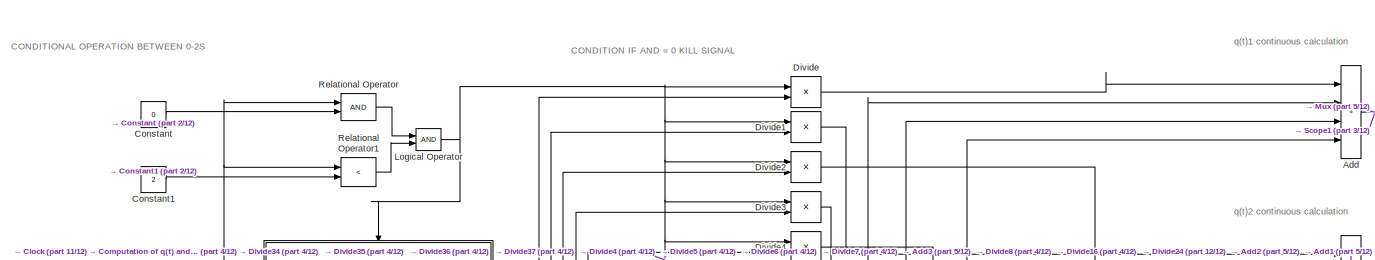
[diagram: root canvas - part 1/12, top left region]
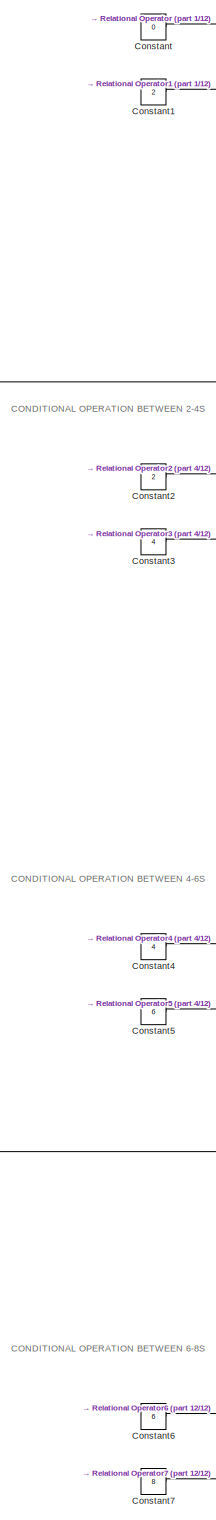
[diagram: root canvas - part 2/12, middle left region]
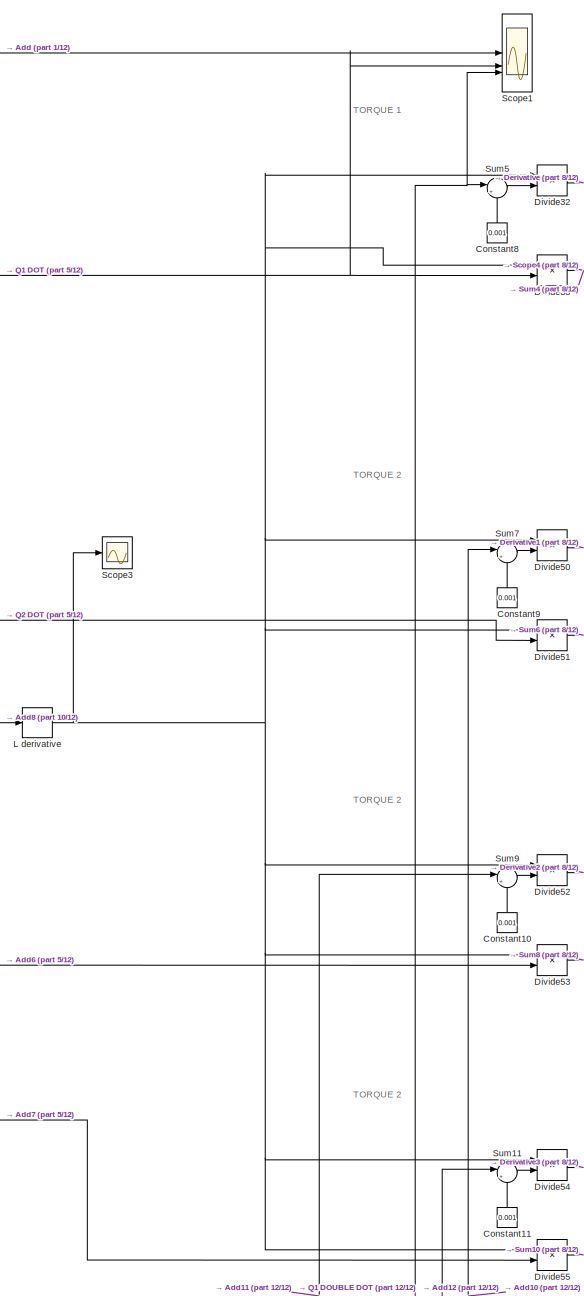
[diagram: root canvas - part 3/12, middle right region]
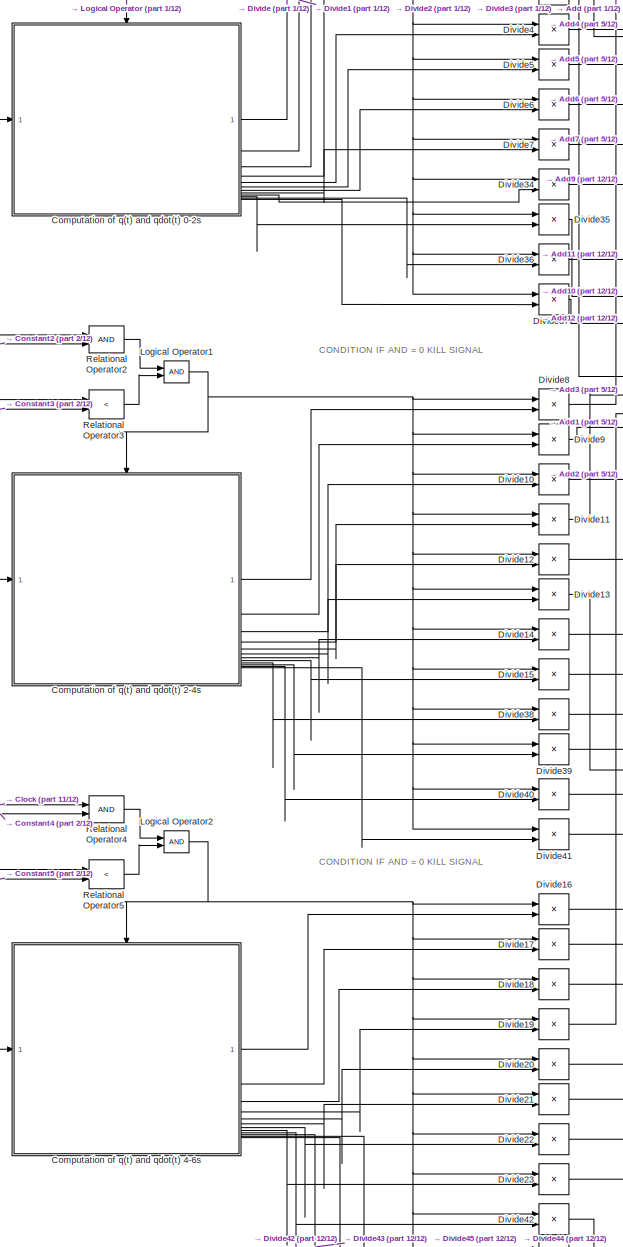
[diagram: root canvas - part 4/12, middle left region]
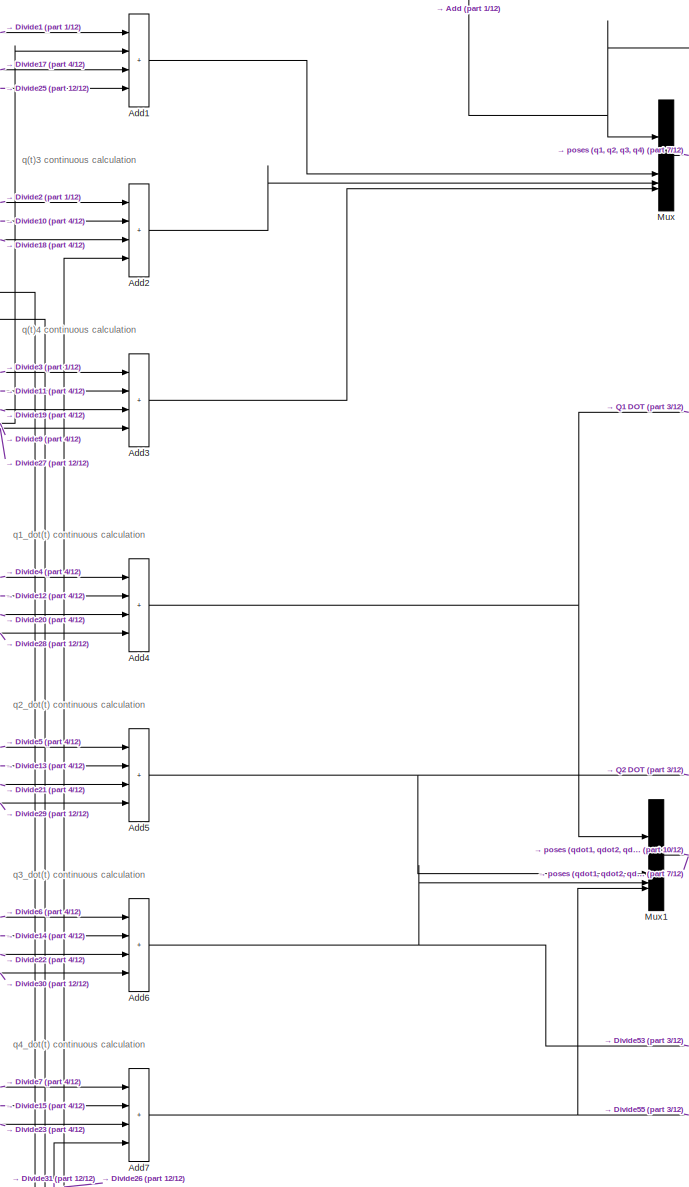
[diagram: root canvas - part 5/12, middle left region]
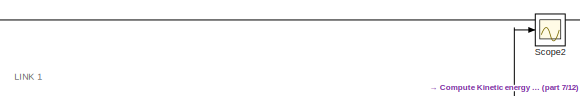
[diagram: root canvas - part 6/12, top center region]
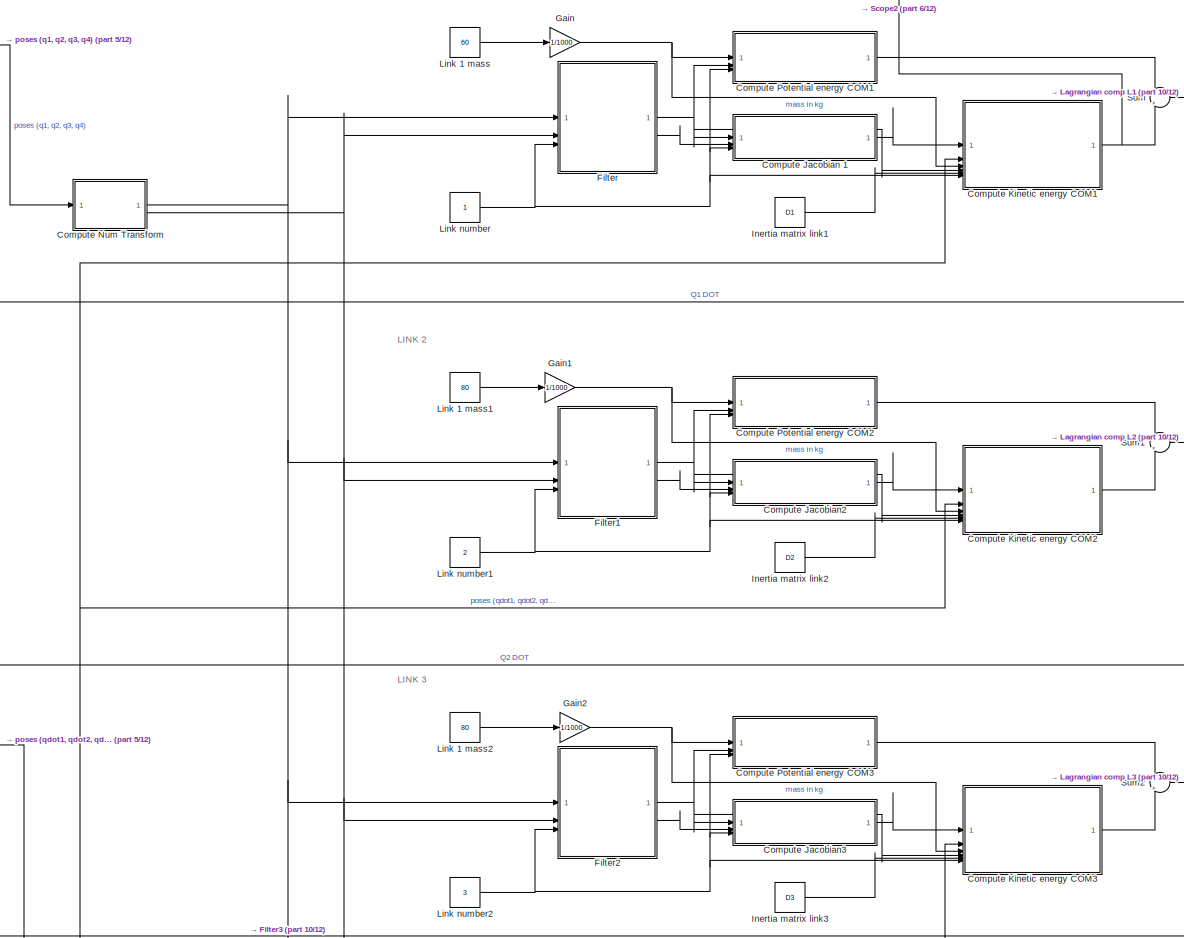
[diagram: root canvas - part 7/12, central region]
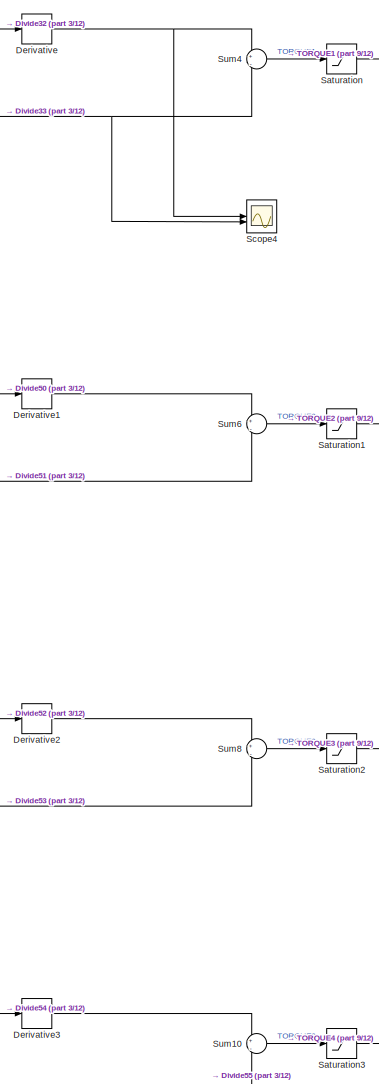
[diagram: root canvas - part 8/12, middle right region]
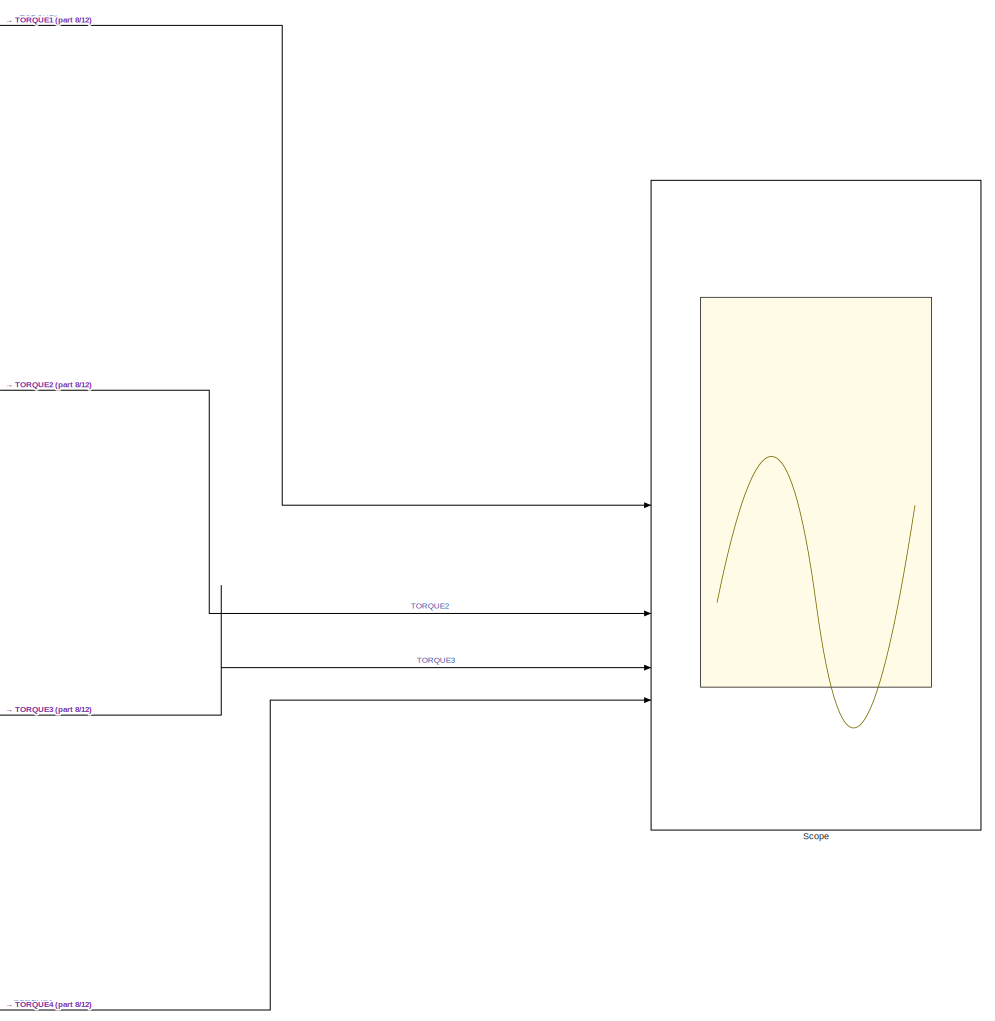
[diagram: root canvas - part 9/12, middle right region]
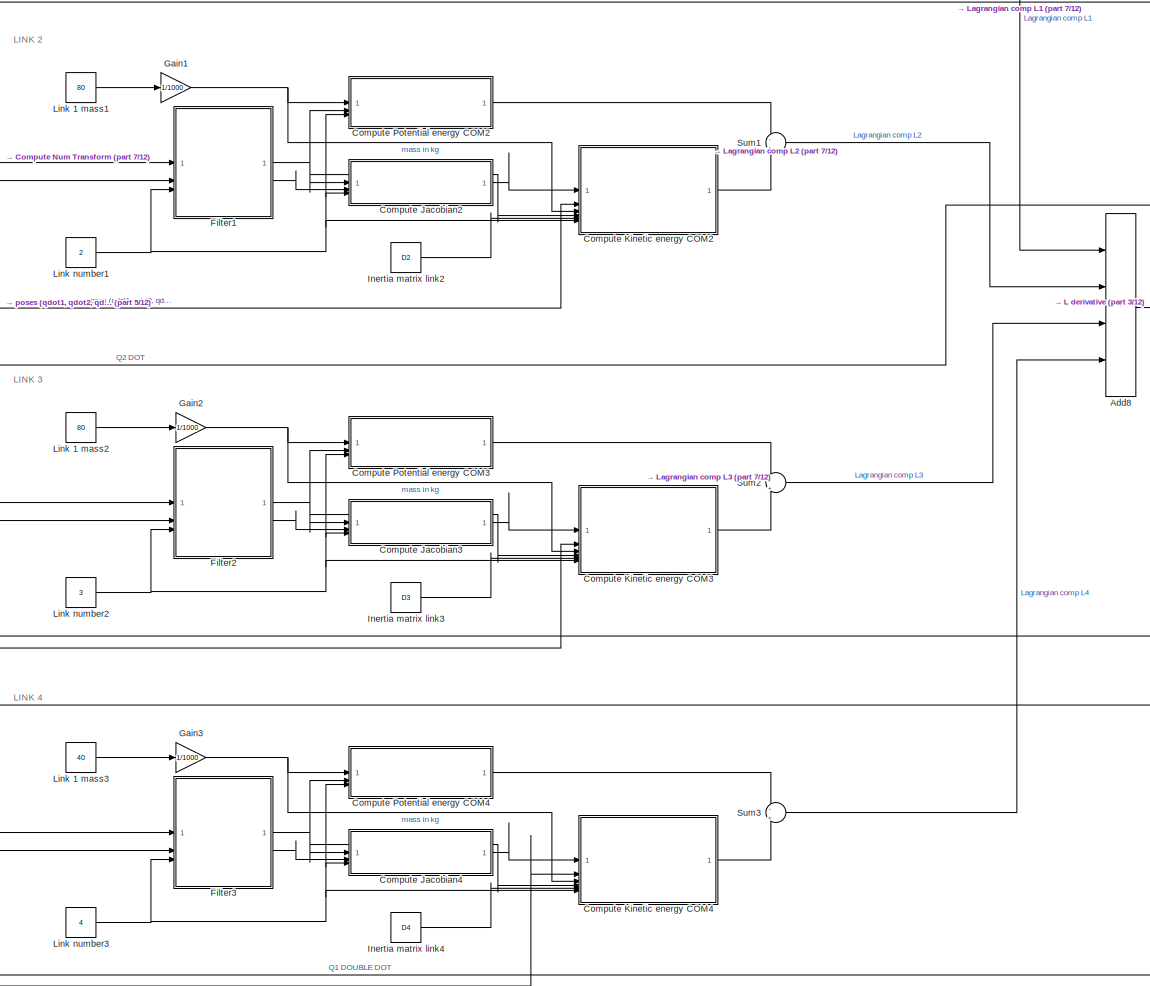
[diagram: root canvas - part 10/12, central region]
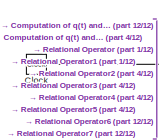
[diagram: root canvas - part 11/12, middle left region]
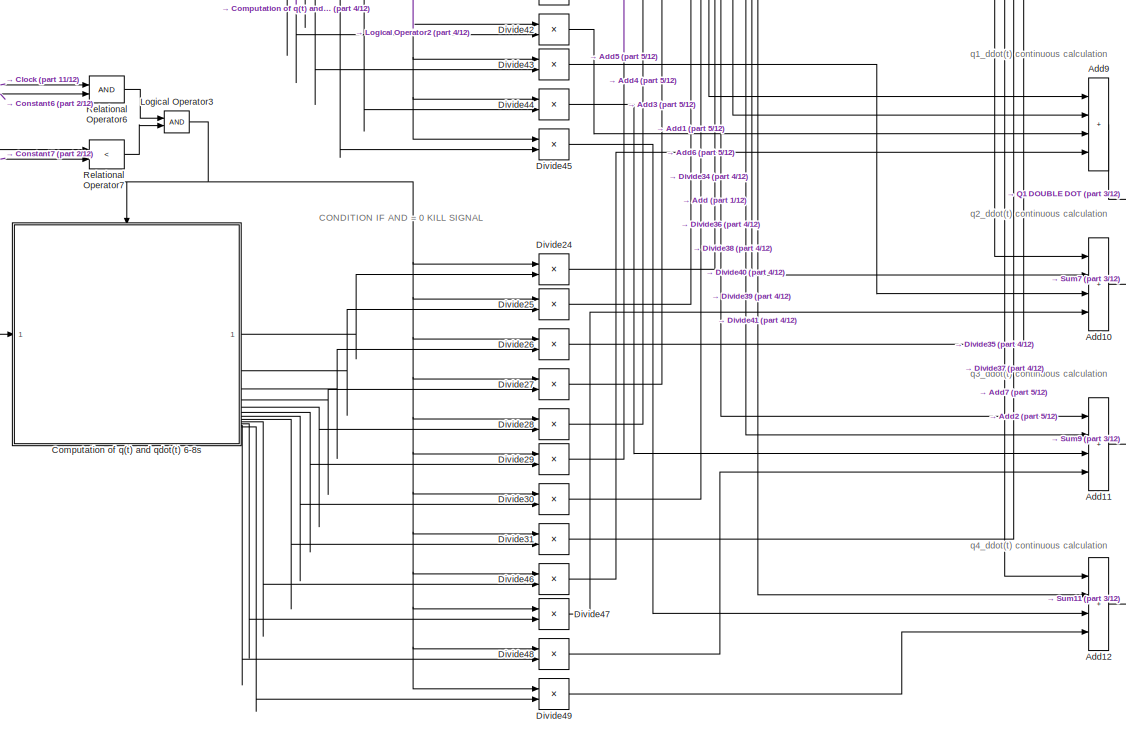
[diagram: root canvas - part 12/12, bottom left region]
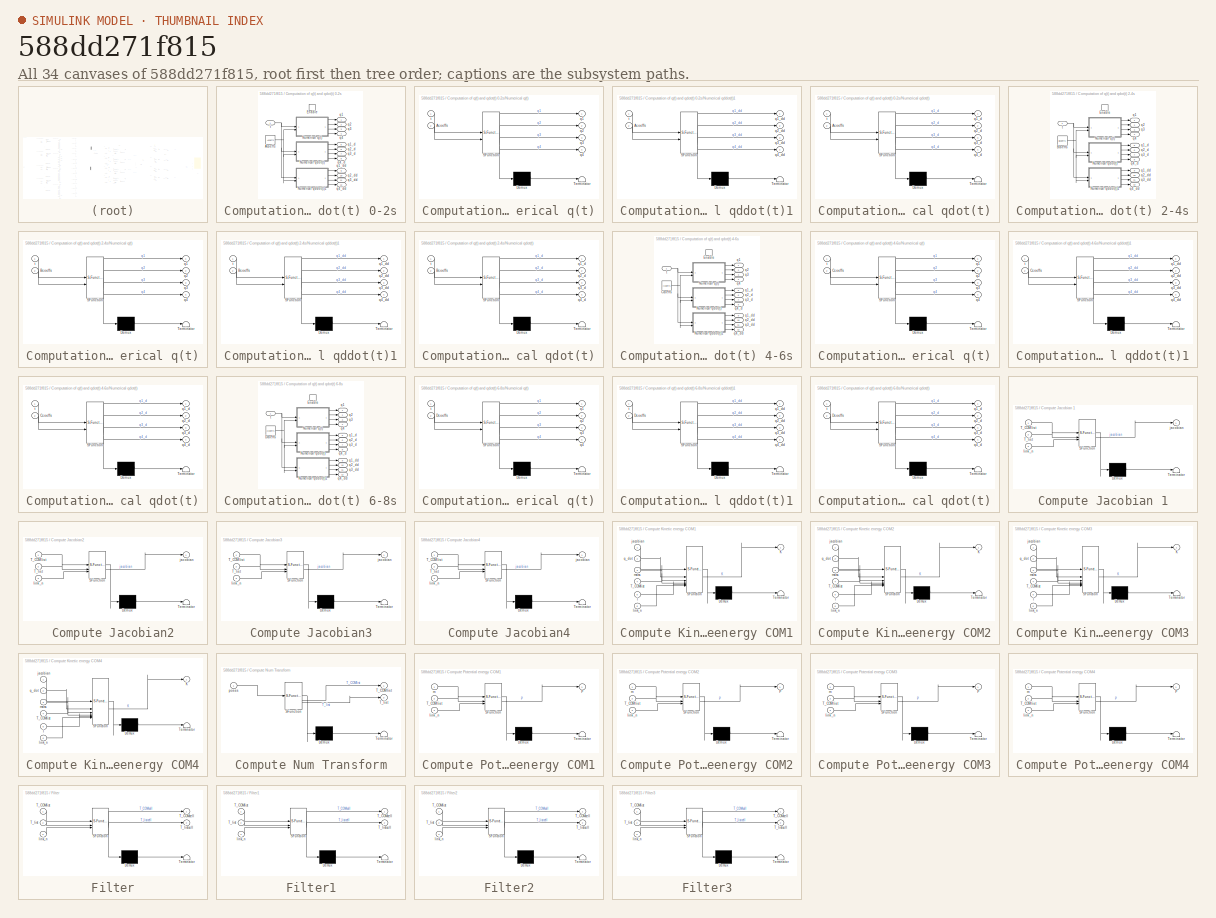
[diagram: thumbnail index - all 34 canvases of the model, root first then tree order]
MODEL slx_588dd271f815
KIND model
CONFIG AbsTol = auto
CONFIG EnableMultiTasking = off
CONFIG FixedStep = 0.001
CONFIG InitFcn = run('assignment_block2.m')
CONFIG MaxStep = auto
CONFIG MinStep = auto
CONFIG RelTol = 1e-3
CONFIG SampleTimeConstraint = Unconstrained
CONFIG SolverName = ode4
CONFIG StartTime = 0.0
CONFIG StopTime = 8
BLOCK [Sum] Add
  IconShape = rectangular
  Inputs = ++++
BLOCK [Sum] Add1
  IconShape = rectangular
  Inputs = ++++
BLOCK [Sum] Add10
  IconShape = rectangular
  Inputs = ++++
BLOCK [Sum] Add11
  IconShape = rectangular
  Inputs = ++++
BLOCK [Sum] Add12
  IconShape = rectangular
  Inputs = ++++
BLOCK [Sum] Add2
  IconShape = rectangular
  Inputs = ++++
BLOCK [Sum] Add3
  IconShape = rectangular
  Inputs = ++++
BLOCK [Sum] Add4
  IconShape = rectangular
  Inputs = ++++
BLOCK [Sum] Add5
  IconShape = rectangular
  Inputs = ++++
BLOCK [Sum] Add6
  IconShape = rectangular
  Inputs = ++++
BLOCK [Sum] Add7
  IconShape = rectangular
  Inputs = ++++
BLOCK [Sum] Add8
  IconShape = rectangular
  Inputs = ++++
BLOCK [Sum] Add9
  IconShape = rectangular
  Inputs = ++++
BLOCK [Clock] Clock
BLOCK [SubSystem] Computation of q(t) and qdot(t) 0-2s
BLOCK [Constant] Computation of q(t) and qdot(t) 0-2s/Acoeffs
  Value = Acoeffs
BLOCK [EnablePort] Computation of q(t) and qdot(t) 0-2s/Enable
BLOCK [SubSystem] Computation of q(t) and qdot(t) 0-2s/Numerical q(t)
  ErrorFcn = Stateflow.Translate.translate
  PermitHierarchicalResolution = ExplicitOnly
  SFBlockType = MATLAB Function
  TreatAsAtomicUnit = on
BLOCK [Demux] Computation of q(t) and qdot(t) 0-2s/Numerical q(t)/ Demux 
  Outputs = 1
BLOCK [S-Function] Computation of q(t) and qdot(t) 0-2s/Numerical q(t)/ SFunction 
  EnableBusSupport = on
  FunctionName = sf_sfun
  PortCounts = [2 5]
  SFcnIsStateOwnerBlock = off
  SFunctionDeploymentMode = off
  Tag = Stateflow S-Function 2
BLOCK [Terminator] Computation of q(t) and qdot(t) 0-2s/Numerical q(t)/ Terminator 
BLOCK [Inport] Computation of q(t) and qdot(t) 0-2s/Numerical q(t)/Acoeffs
  Port = 2
BLOCK [Outport] Computation of q(t) and qdot(t) 0-2s/Numerical q(t)/q1
BLOCK [Outport] Computation of q(t) and qdot(t) 0-2s/Numerical q(t)/q2
  Port = 2
BLOCK [Outport] Computation of q(t) and qdot(t) 0-2s/Numerical q(t)/q3
  Port = 3
BLOCK [Outport] Computation of q(t) and qdot(t) 0-2s/Numerical q(t)/q4
  Port = 4
BLOCK [Inport] Computation of q(t) and qdot(t) 0-2s/Numerical q(t)/t
BLOCK [SubSystem] Computation of q(t) and qdot(t) 0-2s/Numerical qddot(t)1
  ErrorFcn = Stateflow.Translate.translate
  PermitHierarchicalResolution = ExplicitOnly
  SFBlockType = MATLAB Function
  TreatAsAtomicUnit = on
BLOCK [Demux] Computation of q(t) and qdot(t) 0-2s/Numerical qddot(t)1/ Demux 
  Outputs = 1
BLOCK [S-Function] Computation of q(t) and qdot(t) 0-2s/Numerical qddot(t)1/ SFunction 
  EnableBusSupport = on
  FunctionName = sf_sfun
  PortCounts = [2 5]
  SFcnIsStateOwnerBlock = off
  SFunctionDeploymentMode = off
  Tag = Stateflow S-Function 26
BLOCK [Terminator] Computation of q(t) and qdot(t) 0-2s/Numerical qddot(t)1/ Terminator 
BLOCK [Inport] Computation of q(t) and qdot(t) 0-2s/Numerical qddot(t)1/Acoeffs
  Port = 2
BLOCK [Outport] Computation of q(t) and qdot(t) 0-2s/Numerical qddot(t)1/q1_dd
BLOCK [Outport] Computation of q(t) and qdot(t) 0-2s/Numerical qddot(t)1/q2_dd
  Port = 2
BLOCK [Outport] Computation of q(t) and qdot(t) 0-2s/Numerical qddot(t)1/q3_dd
  Port = 3
BLOCK [Outport] Computation of q(t) and qdot(t) 0-2s/Numerical qddot(t)1/q4_dd
  Port = 4
BLOCK [Inport] Computation of q(t) and qdot(t) 0-2s/Numerical qddot(t)1/t
BLOCK [SubSystem] Computation of q(t) and qdot(t) 0-2s/Numerical qdot(t)
  ErrorFcn = Stateflow.Translate.translate
  PermitHierarchicalResolution = ExplicitOnly
  SFBlockType = MATLAB Function
  TreatAsAtomicUnit = on
BLOCK [Demux] Computation of q(t) and qdot(t) 0-2s/Numerical qdot(t)/ Demux 
  Outputs = 1
BLOCK [S-Function] Computation of q(t) and qdot(t) 0-2s/Numerical qdot(t)/ SFunction 
  EnableBusSupport = on
  FunctionName = sf_sfun
  PortCounts = [2 5]
  SFcnIsStateOwnerBlock = off
  SFunctionDeploymentMode = off
  Tag = Stateflow S-Function 1
BLOCK [Terminator] Computation of q(t) and qdot(t) 0-2s/Numerical qdot(t)/ Terminator 
BLOCK [Inport] Computation of q(t) and qdot(t) 0-2s/Numerical qdot(t)/Acoeffs
  Port = 2
BLOCK [Outport] Computation of q(t) and qdot(t) 0-2s/Numerical qdot(t)/q1_d
BLOCK [Outport] Computation of q(t) and qdot(t) 0-2s/Numerical qdot(t)/q2_d
  Port = 2
BLOCK [Outport] Computation of q(t) and qdot(t) 0-2s/Numerical qdot(t)/q3_d
  Port = 3
BLOCK [Outport] Computation of q(t) and qdot(t) 0-2s/Numerical qdot(t)/q4_d
  Port = 4
BLOCK [Inport] Computation of q(t) and qdot(t) 0-2s/Numerical qdot(t)/t
BLOCK [Outport] Computation of q(t) and qdot(t) 0-2s/q1
  OutDataTypeStr = double
BLOCK [Outport] Computation of q(t) and qdot(t) 0-2s/q1_d
  Port = 5
BLOCK [Outport] Computation of q(t) and qdot(t) 0-2s/q1_dd
  Port = 9
BLOCK [Outport] Computation of q(t) and qdot(t) 0-2s/q2
  Port = 2
BLOCK [Outport] Computation of q(t) and qdot(t) 0-2s/q2_d
  Port = 6
BLOCK [Outport] Computation of q(t) and qdot(t) 0-2s/q2_dd
  Port = 10
BLOCK [Outport] Computation of q(t) and qdot(t) 0-2s/q3
  Port = 3
BLOCK [Outport] Computation of q(t) and qdot(t) 0-2s/q3_d
  Port = 7
BLOCK [Outport] Computation of q(t) and qdot(t) 0-2s/q3_dd
  Port = 11
BLOCK [Outport] Computation of q(t) and qdot(t) 0-2s/q4
  Port = 4
BLOCK [Outport] Computation of q(t) and qdot(t) 0-2s/q4_d
  Port = 8
BLOCK [Outport] Computation of q(t) and qdot(t) 0-2s/q4_dd
  Port = 12
BLOCK [Inport] Computation of q(t) and qdot(t) 0-2s/t
BLOCK [SubSystem] Computation of q(t) and qdot(t) 2-4s
BLOCK [Constant] Computation of q(t) and qdot(t) 2-4s/Bcoeffs
  Value = Bcoeffs
BLOCK [EnablePort] Computation of q(t) and qdot(t) 2-4s/Enable
BLOCK [SubSystem] Computation of q(t) and qdot(t) 2-4s/Numerical q(t)
  ErrorFcn = Stateflow.Translate.translate
  PermitHierarchicalResolution = ExplicitOnly
  SFBlockType = MATLAB Function
  TreatAsAtomicUnit = on
BLOCK [Demux] Computation of q(t) and qdot(t) 2-4s/Numerical q(t)/ Demux 
  Outputs = 1
BLOCK [S-Function] Computation of q(t) and qdot(t) 2-4s/Numerical q(t)/ SFunction 
  EnableBusSupport = on
  FunctionName = sf_sfun
  PortCounts = [2 5]
  SFcnIsStateOwnerBlock = off
  SFunctionDeploymentMode = off
  Tag = Stateflow S-Function 3
BLOCK [Terminator] Computation of q(t) and qdot(t) 2-4s/Numerical q(t)/ Terminator 
BLOCK [Inport] Computation of q(t) and qdot(t) 2-4s/Numerical q(t)/Bcoeffs
  Port = 2
BLOCK [Outport] Computation of q(t) and qdot(t) 2-4s/Numerical q(t)/q1
BLOCK [Outport] Computation of q(t) and qdot(t) 2-4s/Numerical q(t)/q2
  Port = 2
BLOCK [Outport] Computation of q(t) and qdot(t) 2-4s/Numerical q(t)/q3
  Port = 3
BLOCK [Outport] Computation of q(t) and qdot(t) 2-4s/Numerical q(t)/q4
  Port = 4
BLOCK [Inport] Computation of q(t) and qdot(t) 2-4s/Numerical q(t)/t
BLOCK [SubSystem] Computation of q(t) and qdot(t) 2-4s/Numerical qddot(t)1
  ErrorFcn = Stateflow.Translate.translate
  PermitHierarchicalResolution = ExplicitOnly
  SFBlockType = MATLAB Function
  TreatAsAtomicUnit = on
BLOCK [Demux] Computation of q(t) and qdot(t) 2-4s/Numerical qddot(t)1/ Demux 
  Outputs = 1
BLOCK [S-Function] Computation of q(t) and qdot(t) 2-4s/Numerical qddot(t)1/ SFunction 
  EnableBusSupport = on
  FunctionName = sf_sfun
  PortCounts = [2 5]
  SFcnIsStateOwnerBlock = off
  SFunctionDeploymentMode = off
  Tag = Stateflow S-Function 27
BLOCK [Terminator] Computation of q(t) and qdot(t) 2-4s/Numerical qddot(t)1/ Terminator 
BLOCK [Inport] Computation of q(t) and qdot(t) 2-4s/Numerical qddot(t)1/Bcoeffs
  Port = 2
BLOCK [Outport] Computation of q(t) and qdot(t) 2-4s/Numerical qddot(t)1/q1_dd
BLOCK [Outport] Computation of q(t) and qdot(t) 2-4s/Numerical qddot(t)1/q2_dd
  Port = 2
BLOCK [Outport] Computation of q(t) and qdot(t) 2-4s/Numerical qddot(t)1/q3_dd
  Port = 3
BLOCK [Outport] Computation of q(t) and qdot(t) 2-4s/Numerical qddot(t)1/q4_dd
  Port = 4
BLOCK [Inport] Computation of q(t) and qdot(t) 2-4s/Numerical qddot(t)1/t
BLOCK [SubSystem] Computation of q(t) and qdot(t) 2-4s/Numerical qdot(t)
  ErrorFcn = Stateflow.Translate.translate
  PermitHierarchicalResolution = ExplicitOnly
  SFBlockType = MATLAB Function
  TreatAsAtomicUnit = on
BLOCK [Demux] Computation of q(t) and qdot(t) 2-4s/Numerical qdot(t)/ Demux 
  Outputs = 1
BLOCK [S-Function] Computation of q(t) and qdot(t) 2-4s/Numerical qdot(t)/ SFunction 
  EnableBusSupport = on
  FunctionName = sf_sfun
  PortCounts = [2 5]
  SFcnIsStateOwnerBlock = off
  SFunctionDeploymentMode = off
  Tag = Stateflow S-Function 4
BLOCK [Terminator] Computation of q(t) and qdot(t) 2-4s/Numerical qdot(t)/ Terminator 
BLOCK [Inport] Computation of q(t) and qdot(t) 2-4s/Numerical qdot(t)/Bcoeffs
  Port = 2
BLOCK [Outport] Computation of q(t) and qdot(t) 2-4s/Numerical qdot(t)/q1_d
BLOCK [Outport] Computation of q(t) and qdot(t) 2-4s/Numerical qdot(t)/q2_d
  Port = 2
BLOCK [Outport] Computation of q(t) and qdot(t) 2-4s/Numerical qdot(t)/q3_d
  Port = 3
BLOCK [Outport] Computation of q(t) and qdot(t) 2-4s/Numerical qdot(t)/q4_d
  Port = 4
BLOCK [Inport] Computation of q(t) and qdot(t) 2-4s/Numerical qdot(t)/t
BLOCK [Outport] Computation of q(t) and qdot(t) 2-4s/q1
  OutDataTypeStr = double
BLOCK [Outport] Computation of q(t) and qdot(t) 2-4s/q1_d
  Port = 5
BLOCK [Outport] Computation of q(t) and qdot(t) 2-4s/q1_dd
  Port = 9
BLOCK [Outport] Computation of q(t) and qdot(t) 2-4s/q2
  Port = 2
BLOCK [Outport] Computation of q(t) and qdot(t) 2-4s/q2_d
  Port = 6
BLOCK [Outport] Computation of q(t) and qdot(t) 2-4s/q2_dd
  Port = 10
BLOCK [Outport] Computation of q(t) and qdot(t) 2-4s/q3
  Port = 3
BLOCK [Outport] Computation of q(t) and qdot(t) 2-4s/q3_d
  Port = 7
BLOCK [Outport] Computation of q(t) and qdot(t) 2-4s/q3_dd
  Port = 11
BLOCK [Outport] Computation of q(t) and qdot(t) 2-4s/q4
  Port = 4
BLOCK [Outport] Computation of q(t) and qdot(t) 2-4s/q4_d
  Port = 8
BLOCK [Outport] Computation of q(t) and qdot(t) 2-4s/q4_dd
  Port = 12
BLOCK [Inport] Computation of q(t) and qdot(t) 2-4s/t
BLOCK [SubSystem] Computation of q(t) and qdot(t) 4-6s
BLOCK [Constant] Computation of q(t) and qdot(t) 4-6s/Ccoeffs
  Value = Ccoeffs
BLOCK [EnablePort] Computation of q(t) and qdot(t) 4-6s/Enable
BLOCK [SubSystem] Computation of q(t) and qdot(t) 4-6s/Numerical q(t)
  ErrorFcn = Stateflow.Translate.translate
  PermitHierarchicalResolution = ExplicitOnly
  SFBlockType = MATLAB Function
  TreatAsAtomicUnit = on
BLOCK [Demux] Computation of q(t) and qdot(t) 4-6s/Numerical q(t)/ Demux 
  Outputs = 1
BLOCK [S-Function] Computation of q(t) and qdot(t) 4-6s/Numerical q(t)/ SFunction 
  EnableBusSupport = on
  FunctionName = sf_sfun
  PortCounts = [2 5]
  SFcnIsStateOwnerBlock = off
  SFunctionDeploymentMode = off
  Tag = Stateflow S-Function 5
BLOCK [Terminator] Computation of q(t) and qdot(t) 4-6s/Numerical q(t)/ Terminator 
BLOCK [Inport] Computation of q(t) and qdot(t) 4-6s/Numerical q(t)/Ccoeffs
  Port = 2
BLOCK [Outport] Computation of q(t) and qdot(t) 4-6s/Numerical q(t)/q1
BLOCK [Outport] Computation of q(t) and qdot(t) 4-6s/Numerical q(t)/q2
  Port = 2
BLOCK [Outport] Computation of q(t) and qdot(t) 4-6s/Numerical q(t)/q3
  Port = 3
BLOCK [Outport] Computation of q(t) and qdot(t) 4-6s/Numerical q(t)/q4
  Port = 4
BLOCK [Inport] Computation of q(t) and qdot(t) 4-6s/Numerical q(t)/t
BLOCK [SubSystem] Computation of q(t) and qdot(t) 4-6s/Numerical qddot(t)1
  ErrorFcn = Stateflow.Translate.translate
  PermitHierarchicalResolution = ExplicitOnly
  SFBlockType = MATLAB Function
  TreatAsAtomicUnit = on
BLOCK [Demux] Computation of q(t) and qdot(t) 4-6s/Numerical qddot(t)1/ Demux 
  Outputs = 1
BLOCK [S-Function] Computation of q(t) and qdot(t) 4-6s/Numerical qddot(t)1/ SFunction 
  EnableBusSupport = on
  FunctionName = sf_sfun
  PortCounts = [2 5]
  SFcnIsStateOwnerBlock = off
  SFunctionDeploymentMode = off
  Tag = Stateflow S-Function 28
BLOCK [Terminator] Computation of q(t) and qdot(t) 4-6s/Numerical qddot(t)1/ Terminator 
BLOCK [Inport] Computation of q(t) and qdot(t) 4-6s/Numerical qddot(t)1/Ccoeffs
  Port = 2
BLOCK [Outport] Computation of q(t) and qdot(t) 4-6s/Numerical qddot(t)1/q1_dd
BLOCK [Outport] Computation of q(t) and qdot(t) 4-6s/Numerical qddot(t)1/q2_dd
  Port = 2
BLOCK [Outport] Computation of q(t) and qdot(t) 4-6s/Numerical qddot(t)1/q3_dd
  Port = 3
BLOCK [Outport] Computation of q(t) and qdot(t) 4-6s/Numerical qddot(t)1/q4_dd
  Port = 4
BLOCK [Inport] Computation of q(t) and qdot(t) 4-6s/Numerical qddot(t)1/t
BLOCK [SubSystem] Computation of q(t) and qdot(t) 4-6s/Numerical qdot(t)
  ErrorFcn = Stateflow.Translate.translate
  PermitHierarchicalResolution = ExplicitOnly
  SFBlockType = MATLAB Function
  TreatAsAtomicUnit = on
BLOCK [Demux] Computation of q(t) and qdot(t) 4-6s/Numerical qdot(t)/ Demux 
  Outputs = 1
BLOCK [S-Function] Computation of q(t) and qdot(t) 4-6s/Numerical qdot(t)/ SFunction 
  EnableBusSupport = on
  FunctionName = sf_sfun
  PortCounts = [2 5]
  SFcnIsStateOwnerBlock = off
  SFunctionDeploymentMode = off
  Tag = Stateflow S-Function 6
BLOCK [Terminator] Computation of q(t) and qdot(t) 4-6s/Numerical qdot(t)/ Terminator 
BLOCK [Inport] Computation of q(t) and qdot(t) 4-6s/Numerical qdot(t)/Ccoeffs
  Port = 2
BLOCK [Outport] Computation of q(t) and qdot(t) 4-6s/Numerical qdot(t)/q1_d
BLOCK [Outport] Computation of q(t) and qdot(t) 4-6s/Numerical qdot(t)/q2_d
  Port = 2
BLOCK [Outport] Computation of q(t) and qdot(t) 4-6s/Numerical qdot(t)/q3_d
  Port = 3
BLOCK [Outport] Computation of q(t) and qdot(t) 4-6s/Numerical qdot(t)/q4_d
  Port = 4
BLOCK [Inport] Computation of q(t) and qdot(t) 4-6s/Numerical qdot(t)/t
BLOCK [Outport] Computation of q(t) and qdot(t) 4-6s/q1
  OutDataTypeStr = double
BLOCK [Outport] Computation of q(t) and qdot(t) 4-6s/q1_d
  Port = 5
BLOCK [Outport] Computation of q(t) and qdot(t) 4-6s/q1_dd
  Port = 9
BLOCK [Outport] Computation of q(t) and qdot(t) 4-6s/q2
  Port = 2
BLOCK [Outport] Computation of q(t) and qdot(t) 4-6s/q2_d
  Port = 6
BLOCK [Outport] Computation of q(t) and qdot(t) 4-6s/q2_dd
  Port = 10
BLOCK [Outport] Computation of q(t) and qdot(t) 4-6s/q3
  Port = 3
BLOCK [Outport] Computation of q(t) and qdot(t) 4-6s/q3_d
  Port = 7
BLOCK [Outport] Computation of q(t) and qdot(t) 4-6s/q3_dd
  Port = 11
BLOCK [Outport] Computation of q(t) and qdot(t) 4-6s/q4
  Port = 4
BLOCK [Outport] Computation of q(t) and qdot(t) 4-6s/q4_d
  Port = 8
BLOCK [Outport] Computation of q(t) and qdot(t) 4-6s/q4_dd
  Port = 12
BLOCK [Inport] Computation of q(t) and qdot(t) 4-6s/t
BLOCK [SubSystem] Computation of q(t) and qdot(t) 6-8s
BLOCK [Constant] Computation of q(t) and qdot(t) 6-8s/Dcoeffs
  Value = Dcoeffs
BLOCK [EnablePort] Computation of q(t) and qdot(t) 6-8s/Enable
BLOCK [SubSystem] Computation of q(t) and qdot(t) 6-8s/Numerical q(t)
  ErrorFcn = Stateflow.Translate.translate
  PermitHierarchicalResolution = ExplicitOnly
  SFBlockType = MATLAB Function
  TreatAsAtomicUnit = on
BLOCK [Demux] Computation of q(t) and qdot(t) 6-8s/Numerical q(t)/ Demux 
  Outputs = 1
BLOCK [S-Function] Computation of q(t) and qdot(t) 6-8s/Numerical q(t)/ SFunction 
  EnableBusSupport = on
  FunctionName = sf_sfun
  PortCounts = [2 5]
  SFcnIsStateOwnerBlock = off
  SFunctionDeploymentMode = off
  Tag = Stateflow S-Function 7
BLOCK [Terminator] Computation of q(t) and qdot(t) 6-8s/Numerical q(t)/ Terminator 
BLOCK [Inport] Computation of q(t) and qdot(t) 6-8s/Numerical q(t)/Dcoeffs
  Port = 2
BLOCK [Outport] Computation of q(t) and qdot(t) 6-8s/Numerical q(t)/q1
BLOCK [Outport] Computation of q(t) and qdot(t) 6-8s/Numerical q(t)/q2
  Port = 2
BLOCK [Outport] Computation of q(t) and qdot(t) 6-8s/Numerical q(t)/q3
  Port = 3
BLOCK [Outport] Computation of q(t) and qdot(t) 6-8s/Numerical q(t)/q4
  Port = 4
BLOCK [Inport] Computation of q(t) and qdot(t) 6-8s/Numerical q(t)/t
BLOCK [SubSystem] Computation of q(t) and qdot(t) 6-8s/Numerical qddot(t)1
  ErrorFcn = Stateflow.Translate.translate
  PermitHierarchicalResolution = ExplicitOnly
  SFBlockType = MATLAB Function
  TreatAsAtomicUnit = on
BLOCK [Demux] Computation of q(t) and qdot(t) 6-8s/Numerical qddot(t)1/ Demux 
  Outputs = 1
BLOCK [S-Function] Computation of q(t) and qdot(t) 6-8s/Numerical qddot(t)1/ SFunction 
  EnableBusSupport = on
  FunctionName = sf_sfun
  PortCounts = [2 5]
  SFcnIsStateOwnerBlock = off
  SFunctionDeploymentMode = off
  Tag = Stateflow S-Function 29
BLOCK [Terminator] Computation of q(t) and qdot(t) 6-8s/Numerical qddot(t)1/ Terminator 
BLOCK [Inport] Computation of q(t) and qdot(t) 6-8s/Numerical qddot(t)1/Dcoeffs
  Port = 2
BLOCK [Outport] Computation of q(t) and qdot(t) 6-8s/Numerical qddot(t)1/q1_dd
BLOCK [Outport] Computation of q(t) and qdot(t) 6-8s/Numerical qddot(t)1/q2_dd
  Port = 2
BLOCK [Outport] Computation of q(t) and qdot(t) 6-8s/Numerical qddot(t)1/q3_dd
  Port = 3
BLOCK [Outport] Computation of q(t) and qdot(t) 6-8s/Numerical qddot(t)1/q4_dd
  Port = 4
BLOCK [Inport] Computation of q(t) and qdot(t) 6-8s/Numerical qddot(t)1/t
BLOCK [SubSystem] Computation of q(t) and qdot(t) 6-8s/Numerical qdot(t)
  ErrorFcn = Stateflow.Translate.translate
  PermitHierarchicalResolution = ExplicitOnly
  SFBlockType = MATLAB Function
  TreatAsAtomicUnit = on
BLOCK [Demux] Computation of q(t) and qdot(t) 6-8s/Numerical qdot(t)/ Demux 
  Outputs = 1
BLOCK [S-Function] Computation of q(t) and qdot(t) 6-8s/Numerical qdot(t)/ SFunction 
  EnableBusSupport = on
  FunctionName = sf_sfun
  PortCounts = [2 5]
  SFcnIsStateOwnerBlock = off
  SFunctionDeploymentMode = off
  Tag = Stateflow S-Function 8
BLOCK [Terminator] Computation of q(t) and qdot(t) 6-8s/Numerical qdot(t)/ Terminator 
BLOCK [Inport] Computation of q(t) and qdot(t) 6-8s/Numerical qdot(t)/Dcoeffs
  Port = 2
BLOCK [Outport] Computation of q(t) and qdot(t) 6-8s/Numerical qdot(t)/q1_d
BLOCK [Outport] Computation of q(t) and qdot(t) 6-8s/Numerical qdot(t)/q2_d
  Port = 2
BLOCK [Outport] Computation of q(t) and qdot(t) 6-8s/Numerical qdot(t)/q3_d
  Port = 3
BLOCK [Outport] Computation of q(t) and qdot(t) 6-8s/Numerical qdot(t)/q4_d
  Port = 4
BLOCK [Inport] Computation of q(t) and qdot(t) 6-8s/Numerical qdot(t)/t
BLOCK [Outport] Computation of q(t) and qdot(t) 6-8s/q1
  OutDataTypeStr = double
BLOCK [Outport] Computation of q(t) and qdot(t) 6-8s/q1_d
  Port = 5
BLOCK [Outport] Computation of q(t) and qdot(t) 6-8s/q1_dd
  Port = 9
BLOCK [Outport] Computation of q(t) and qdot(t) 6-8s/q2
  Port = 2
BLOCK [Outport] Computation of q(t) and qdot(t) 6-8s/q2_d
  Port = 6
BLOCK [Outport] Computation of q(t) and qdot(t) 6-8s/q2_dd
  Port = 10
BLOCK [Outport] Computation of q(t) and qdot(t) 6-8s/q3
  Port = 3
BLOCK [Outport] Computation of q(t) and qdot(t) 6-8s/q3_d
  Port = 7
BLOCK [Outport] Computation of q(t) and qdot(t) 6-8s/q3_dd
  Port = 11
BLOCK [Outport] Computation of q(t) and qdot(t) 6-8s/q4
  Port = 4
BLOCK [Outport] Computation of q(t) and qdot(t) 6-8s/q4_d
  Port = 8
BLOCK [Outport] Computation of q(t) and qdot(t) 6-8s/q4_dd
  Port = 12
BLOCK [Inport] Computation of q(t) and qdot(t) 6-8s/t
BLOCK [SubSystem] Compute Jacobian 1
  ErrorFcn = Stateflow.Translate.translate
  PermitHierarchicalResolution = ExplicitOnly
  SFBlockType = MATLAB Function
  TreatAsAtomicUnit = on
BLOCK [Demux] Compute Jacobian 1/ Demux 
  Outputs = 1
BLOCK [S-Function] Compute Jacobian 1/ SFunction 
  EnableBusSupport = on
  FunctionName = sf_sfun
  PortCounts = [3 2]
  SFcnIsStateOwnerBlock = off
  SFunctionDeploymentMode = off
  Tag = Stateflow S-Function 10
BLOCK [Terminator] Compute Jacobian 1/ Terminator 
BLOCK [Inport] Compute Jacobian 1/T_COMlist
BLOCK [Inport] Compute Jacobian 1/T_list
  Port = 2
BLOCK [Outport] Compute Jacobian 1/jacobian
BLOCK [Inport] Compute Jacobian 1/link_n
  Port = 3
BLOCK [SubSystem] Compute Jacobian2
  ErrorFcn = Stateflow.Translate.translate
  PermitHierarchicalResolution = ExplicitOnly
  SFBlockType = MATLAB Function
  TreatAsAtomicUnit = on
BLOCK [Demux] Compute Jacobian2/ Demux 
  Outputs = 1
BLOCK [S-Function] Compute Jacobian2/ SFunction 
  EnableBusSupport = on
  FunctionName = sf_sfun
  PortCounts = [3 2]
  SFcnIsStateOwnerBlock = off
  SFunctionDeploymentMode = off
  Tag = Stateflow S-Function 14
BLOCK [Terminator] Compute Jacobian2/ Terminator 
BLOCK [Inport] Compute Jacobian2/T_COMlist
BLOCK [Inport] Compute Jacobian2/T_list
  Port = 2
BLOCK [Outport] Compute Jacobian2/jacobian
BLOCK [Inport] Compute Jacobian2/link_n
  Port = 3
BLOCK [SubSystem] Compute Jacobian3
  ErrorFcn = Stateflow.Translate.translate
  PermitHierarchicalResolution = ExplicitOnly
  SFBlockType = MATLAB Function
  TreatAsAtomicUnit = on
BLOCK [Demux] Compute Jacobian3/ Demux 
  Outputs = 1
BLOCK [S-Function] Compute Jacobian3/ SFunction 
  EnableBusSupport = on
  FunctionName = sf_sfun
  PortCounts = [3 2]
  SFcnIsStateOwnerBlock = off
  SFunctionDeploymentMode = off
  Tag = Stateflow S-Function 18
BLOCK [Terminator] Compute Jacobian3/ Terminator 
BLOCK [Inport] Compute Jacobian3/T_COMlist
BLOCK [Inport] Compute Jacobian3/T_list
  Port = 2
BLOCK [Outport] Compute Jacobian3/jacobian
BLOCK [Inport] Compute Jacobian3/link_n
  Port = 3
BLOCK [SubSystem] Compute Jacobian4
  ErrorFcn = Stateflow.Translate.translate
  PermitHierarchicalResolution = ExplicitOnly
  SFBlockType = MATLAB Function
  TreatAsAtomicUnit = on
BLOCK [Demux] Compute Jacobian4/ Demux 
  Outputs = 1
BLOCK [S-Function] Compute Jacobian4/ SFunction 
  EnableBusSupport = on
  FunctionName = sf_sfun
  PortCounts = [3 2]
  SFcnIsStateOwnerBlock = off
  SFunctionDeploymentMode = off
  Tag = Stateflow S-Function 22
BLOCK [Terminator] Compute Jacobian4/ Terminator 
BLOCK [Inport] Compute Jacobian4/T_COMlist
BLOCK [Inport] Compute Jacobian4/T_list
  Port = 2
BLOCK [Outport] Compute Jacobian4/jacobian
BLOCK [Inport] Compute Jacobian4/link_n
  Port = 3
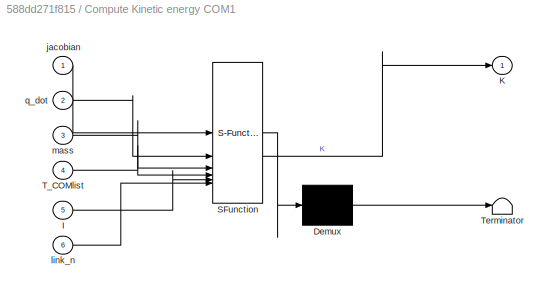
BLOCK [SubSystem] Compute Kinetic energy COM1
  ErrorFcn = Stateflow.Translate.translate
  PermitHierarchicalResolution = ExplicitOnly
  SFBlockType = MATLAB Function
  TreatAsAtomicUnit = on
BLOCK [Demux] Compute Kinetic energy COM1/ Demux 
  Outputs = 1
BLOCK [S-Function] Compute Kinetic energy COM1/ SFunction 
  EnableBusSupport = on
  FunctionName = sf_sfun
  PortCounts = [6 2]
  SFcnIsStateOwnerBlock = off
  SFunctionDeploymentMode = off
  Tag = Stateflow S-Function 13
BLOCK [Terminator] Compute Kinetic energy COM1/ Terminator 
BLOCK [Inport] Compute Kinetic energy COM1/I
  Port = 5
BLOCK [Outport] Compute Kinetic energy COM1/K
BLOCK [Inport] Compute Kinetic energy COM1/T_COMlist
  Port = 4
BLOCK [Inport] Compute Kinetic energy COM1/jacobian
BLOCK [Inport] Compute Kinetic energy COM1/link_n
  Port = 6
BLOCK [Inport] Compute Kinetic energy COM1/mass
  Port = 3
BLOCK [Inport] Compute Kinetic energy COM1/q_dot
  Port = 2
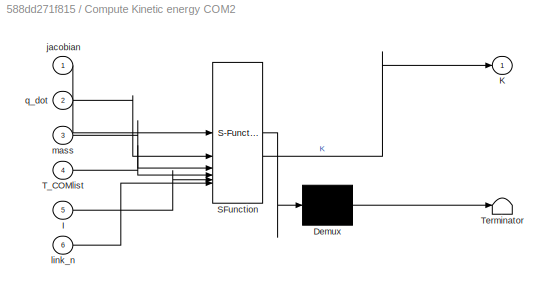
BLOCK [SubSystem] Compute Kinetic energy COM2
  ErrorFcn = Stateflow.Translate.translate
  PermitHierarchicalResolution = ExplicitOnly
  SFBlockType = MATLAB Function
  TreatAsAtomicUnit = on
BLOCK [Demux] Compute Kinetic energy COM2/ Demux 
  Outputs = 1
BLOCK [S-Function] Compute Kinetic energy COM2/ SFunction 
  EnableBusSupport = on
  FunctionName = sf_sfun
  PortCounts = [6 2]
  SFcnIsStateOwnerBlock = off
  SFunctionDeploymentMode = off
  Tag = Stateflow S-Function 15
BLOCK [Terminator] Compute Kinetic energy COM2/ Terminator 
BLOCK [Inport] Compute Kinetic energy COM2/I
  Port = 5
BLOCK [Outport] Compute Kinetic energy COM2/K
BLOCK [Inport] Compute Kinetic energy COM2/T_COMlist
  Port = 4
BLOCK [Inport] Compute Kinetic energy COM2/jacobian
BLOCK [Inport] Compute Kinetic energy COM2/link_n
  Port = 6
BLOCK [Inport] Compute Kinetic energy COM2/mass
  Port = 3
BLOCK [Inport] Compute Kinetic energy COM2/q_dot
  Port = 2
BLOCK [SubSystem] Compute Kinetic energy COM3
  ErrorFcn = Stateflow.Translate.translate
  PermitHierarchicalResolution = ExplicitOnly
  SFBlockType = MATLAB Function
  TreatAsAtomicUnit = on
BLOCK [Demux] Compute Kinetic energy COM3/ Demux 
  Outputs = 1
BLOCK [S-Function] Compute Kinetic energy COM3/ SFunction 
  EnableBusSupport = on
  FunctionName = sf_sfun
  PortCounts = [6 2]
  SFcnIsStateOwnerBlock = off
  SFunctionDeploymentMode = off
  Tag = Stateflow S-Function 19
BLOCK [Terminator] Compute Kinetic energy COM3/ Terminator 
BLOCK [Inport] Compute Kinetic energy COM3/I
  Port = 5
BLOCK [Outport] Compute Kinetic energy COM3/K
BLOCK [Inport] Compute Kinetic energy COM3/T_COMlist
  Port = 4
BLOCK [Inport] Compute Kinetic energy COM3/jacobian
BLOCK [Inport] Compute Kinetic energy COM3/link_n
  Port = 6
BLOCK [Inport] Compute Kinetic energy COM3/mass
  Port = 3
BLOCK [Inport] Compute Kinetic energy COM3/q_dot
  Port = 2
BLOCK [SubSystem] Compute Kinetic energy COM4
  ErrorFcn = Stateflow.Translate.translate
  PermitHierarchicalResolution = ExplicitOnly
  SFBlockType = MATLAB Function
  TreatAsAtomicUnit = on
BLOCK [Demux] Compute Kinetic energy COM4/ Demux 
  Outputs = 1
BLOCK [S-Function] Compute Kinetic energy COM4/ SFunction 
  EnableBusSupport = on
  FunctionName = sf_sfun
  PortCounts = [6 2]
  SFcnIsStateOwnerBlock = off
  SFunctionDeploymentMode = off
  Tag = Stateflow S-Function 23
BLOCK [Terminator] Compute Kinetic energy COM4/ Terminator 
BLOCK [Inport] Compute Kinetic energy COM4/I
  Port = 5
BLOCK [Outport] Compute Kinetic energy COM4/K
BLOCK [Inport] Compute Kinetic energy COM4/T_COMlist
  Port = 4
BLOCK [Inport] Compute Kinetic energy COM4/jacobian
BLOCK [Inport] Compute Kinetic energy COM4/link_n
  Port = 6
BLOCK [Inport] Compute Kinetic energy COM4/mass
  Port = 3
BLOCK [Inport] Compute Kinetic energy COM4/q_dot
  Port = 2
BLOCK [SubSystem] Compute Num Transform
  ErrorFcn = Stateflow.Translate.translate
  PermitHierarchicalResolution = ExplicitOnly
  SFBlockType = MATLAB Function
  TreatAsAtomicUnit = on
BLOCK [Demux] Compute Num Transform/ Demux 
  Outputs = 1
BLOCK [S-Function] Compute Num Transform/ SFunction 
  EnableBusSupport = on
  FunctionName = sf_sfun
  PortCounts = [1 3]
  SFcnIsStateOwnerBlock = off
  SFunctionDeploymentMode = off
  Tag = Stateflow S-Function 9
BLOCK [Terminator] Compute Num Transform/ Terminator 
BLOCK [Outport] Compute Num Transform/T_COMlist
BLOCK [Outport] Compute Num Transform/T_list
  Port = 2
BLOCK [Inport] Compute Num Transform/poses
BLOCK [SubSystem] Compute Potential energy COM1
  ErrorFcn = Stateflow.Translate.translate
  PermitHierarchicalResolution = ExplicitOnly
  SFBlockType = MATLAB Function
  TreatAsAtomicUnit = on
BLOCK [Demux] Compute Potential energy COM1/ Demux 
  Outputs = 1
BLOCK [S-Function] Compute Potential energy COM1/ SFunction 
  EnableBusSupport = on
  FunctionName = sf_sfun
  PortCounts = [3 2]
  SFcnIsStateOwnerBlock = off
  SFunctionDeploymentMode = off
  Tag = Stateflow S-Function 12
BLOCK [Terminator] Compute Potential energy COM1/ Terminator 
BLOCK [Outport] Compute Potential energy COM1/P
BLOCK [Inport] Compute Potential energy COM1/T_COMlist
  Port = 2
BLOCK [Inport] Compute Potential energy COM1/link_n
  Port = 3
BLOCK [Inport] Compute Potential energy COM1/m
BLOCK [SubSystem] Compute Potential energy COM2
  ErrorFcn = Stateflow.Translate.translate
  PermitHierarchicalResolution = ExplicitOnly
  SFBlockType = MATLAB Function
  TreatAsAtomicUnit = on
BLOCK [Demux] Compute Potential energy COM2/ Demux 
  Outputs = 1
BLOCK [S-Function] Compute Potential energy COM2/ SFunction 
  EnableBusSupport = on
  FunctionName = sf_sfun
  PortCounts = [3 2]
  SFcnIsStateOwnerBlock = off
  SFunctionDeploymentMode = off
  Tag = Stateflow S-Function 16
BLOCK [Terminator] Compute Potential energy COM2/ Terminator 
BLOCK [Outport] Compute Potential energy COM2/P
BLOCK [Inport] Compute Potential energy COM2/T_COMlist
  Port = 2
BLOCK [Inport] Compute Potential energy COM2/link_n
  Port = 3
BLOCK [Inport] Compute Potential energy COM2/m
BLOCK [SubSystem] Compute Potential energy COM3
  ErrorFcn = Stateflow.Translate.translate
  PermitHierarchicalResolution = ExplicitOnly
  SFBlockType = MATLAB Function
  TreatAsAtomicUnit = on
BLOCK [Demux] Compute Potential energy COM3/ Demux 
  Outputs = 1
BLOCK [S-Function] Compute Potential energy COM3/ SFunction 
  EnableBusSupport = on
  FunctionName = sf_sfun
  PortCounts = [3 2]
  SFcnIsStateOwnerBlock = off
  SFunctionDeploymentMode = off
  Tag = Stateflow S-Function 20
BLOCK [Terminator] Compute Potential energy COM3/ Terminator 
BLOCK [Outport] Compute Potential energy COM3/P
BLOCK [Inport] Compute Potential energy COM3/T_COMlist
  Port = 2
BLOCK [Inport] Compute Potential energy COM3/link_n
  Port = 3
BLOCK [Inport] Compute Potential energy COM3/m
BLOCK [SubSystem] Compute Potential energy COM4
  ErrorFcn = Stateflow.Translate.translate
  PermitHierarchicalResolution = ExplicitOnly
  SFBlockType = MATLAB Function
  TreatAsAtomicUnit = on
BLOCK [Demux] Compute Potential energy COM4/ Demux 
  Outputs = 1
BLOCK [S-Function] Compute Potential energy COM4/ SFunction 
  EnableBusSupport = on
  FunctionName = sf_sfun
  PortCounts = [3 2]
  SFcnIsStateOwnerBlock = off
  SFunctionDeploymentMode = off
  Tag = Stateflow S-Function 24
BLOCK [Terminator] Compute Potential energy COM4/ Terminator 
BLOCK [Outport] Compute Potential energy COM4/P
BLOCK [Inport] Compute Potential energy COM4/T_COMlist
  Port = 2
BLOCK [Inport] Compute Potential energy COM4/link_n
  Port = 3
BLOCK [Inport] Compute Potential energy COM4/m
BLOCK [Constant] Constant
  Value = 0
BLOCK [Constant] Constant1
  Value = 2
BLOCK [Constant] Constant10
  NameLocation = right
  Value = 0.001
BLOCK [Constant] Constant11
  NameLocation = right
  Value = 0.001
BLOCK [Constant] Constant2
  Value = 2
BLOCK [Constant] Constant3
  Value = 4
BLOCK [Constant] Constant4
  Value = 4
BLOCK [Constant] Constant5
  Value = 6
BLOCK [Constant] Constant6
  Value = 6
BLOCK [Constant] Constant7
  Value = 8
BLOCK [Constant] Constant8
  NameLocation = right
  Value = 0.001
BLOCK [Constant] Constant9
  NameLocation = right
  Value = 0.001
BLOCK [Derivative] Derivative
BLOCK [Derivative] Derivative1
BLOCK [Derivative] Derivative2
BLOCK [Derivative] Derivative3
BLOCK [Product] Divide
  Inputs = **
BLOCK [Product] Divide1
  Inputs = **
BLOCK [Product] Divide10
  Inputs = **
BLOCK [Product] Divide11
  Inputs = **
BLOCK [Product] Divide12
  Inputs = **
BLOCK [Product] Divide13
  Inputs = **
BLOCK [Product] Divide14
  Inputs = **
BLOCK [Product] Divide15
  Inputs = **
BLOCK [Product] Divide16
  Inputs = **
BLOCK [Product] Divide17
  Inputs = **
BLOCK [Product] Divide18
  Inputs = **
BLOCK [Product] Divide19
  Inputs = **
BLOCK [Product] Divide2
  Inputs = **
BLOCK [Product] Divide20
  Inputs = **
BLOCK [Product] Divide21
  Inputs = **
BLOCK [Product] Divide22
  Inputs = **
BLOCK [Product] Divide23
  Inputs = **
BLOCK [Product] Divide24
  Inputs = **
BLOCK [Product] Divide25
  Inputs = **
BLOCK [Product] Divide26
  Inputs = **
BLOCK [Product] Divide27
  Inputs = **
BLOCK [Product] Divide28
  Inputs = **
BLOCK [Product] Divide29
  Inputs = **
BLOCK [Product] Divide3
  Inputs = **
BLOCK [Product] Divide30
  Inputs = **
BLOCK [Product] Divide31
  Inputs = **
BLOCK [Product] Divide32
  Inputs = */
BLOCK [Product] Divide33
  Inputs = */
BLOCK [Product] Divide34
  Inputs = **
BLOCK [Product] Divide35
  Inputs = **
BLOCK [Product] Divide36
  Inputs = **
BLOCK [Product] Divide37
  Inputs = **
BLOCK [Product] Divide38
  Inputs = **
BLOCK [Product] Divide39
  Inputs = **
BLOCK [Product] Divide4
  Inputs = **
BLOCK [Product] Divide40
  Inputs = **
BLOCK [Product] Divide41
  Inputs = **
BLOCK [Product] Divide42
  Inputs = **
BLOCK [Product] Divide43
  Inputs = **
BLOCK [Product] Divide44
  Inputs = **
BLOCK [Product] Divide45
  Inputs = **
BLOCK [Product] Divide46
  Inputs = **
BLOCK [Product] Divide47
  Inputs = **
BLOCK [Product] Divide48
  Inputs = **
BLOCK [Product] Divide49
  Inputs = **
BLOCK [Product] Divide5
  Inputs = **
BLOCK [Product] Divide50
  Inputs = */
BLOCK [Product] Divide51
  Inputs = */
BLOCK [Product] Divide52
  Inputs = */
BLOCK [Product] Divide53
  Inputs = */
BLOCK [Product] Divide54
  Inputs = */
BLOCK [Product] Divide55
  Inputs = */
BLOCK [Product] Divide6
  Inputs = **
BLOCK [Product] Divide7
  Inputs = **
BLOCK [Product] Divide8
  Inputs = **
BLOCK [Product] Divide9
  Inputs = **
BLOCK [SubSystem] Filter
  ErrorFcn = Stateflow.Translate.translate
  PermitHierarchicalResolution = ExplicitOnly
  SFBlockType = MATLAB Function
  TreatAsAtomicUnit = on
BLOCK [Demux] Filter/ Demux 
  Outputs = 1
BLOCK [S-Function] Filter/ SFunction 
  EnableBusSupport = on
  FunctionName = sf_sfun
  PortCounts = [3 3]
  SFcnIsStateOwnerBlock = off
  SFunctionDeploymentMode = off
  Tag = Stateflow S-Function 11
BLOCK [Terminator] Filter/ Terminator 
BLOCK [Outport] Filter/T_COMcell
BLOCK [Inport] Filter/T_COMlist
BLOCK [Inport] Filter/T_list
  Port = 2
BLOCK [Outport] Filter/T_listcell
  Port = 2
BLOCK [Inport] Filter/link_n
  Port = 3
BLOCK [SubSystem] Filter1
  ErrorFcn = Stateflow.Translate.translate
  PermitHierarchicalResolution = ExplicitOnly
  SFBlockType = MATLAB Function
  TreatAsAtomicUnit = on
BLOCK [Demux] Filter1/ Demux 
  Outputs = 1
BLOCK [S-Function] Filter1/ SFunction 
  EnableBusSupport = on
  FunctionName = sf_sfun
  PortCounts = [3 3]
  SFcnIsStateOwnerBlock = off
  SFunctionDeploymentMode = off
  Tag = Stateflow S-Function 17
BLOCK [Terminator] Filter1/ Terminator 
BLOCK [Outport] Filter1/T_COMcell
BLOCK [Inport] Filter1/T_COMlist
BLOCK [Inport] Filter1/T_list
  Port = 2
BLOCK [Outport] Filter1/T_listcell
  Port = 2
BLOCK [Inport] Filter1/link_n
  Port = 3
BLOCK [SubSystem] Filter2
  ErrorFcn = Stateflow.Translate.translate
  PermitHierarchicalResolution = ExplicitOnly
  SFBlockType = MATLAB Function
  TreatAsAtomicUnit = on
BLOCK [Demux] Filter2/ Demux 
  Outputs = 1
BLOCK [S-Function] Filter2/ SFunction 
  EnableBusSupport = on
  FunctionName = sf_sfun
  PortCounts = [3 3]
  SFcnIsStateOwnerBlock = off
  SFunctionDeploymentMode = off
  Tag = Stateflow S-Function 21
BLOCK [Terminator] Filter2/ Terminator 
BLOCK [Outport] Filter2/T_COMcell
BLOCK [Inport] Filter2/T_COMlist
BLOCK [Inport] Filter2/T_list
  Port = 2
BLOCK [Outport] Filter2/T_listcell
  Port = 2
BLOCK [Inport] Filter2/link_n
  Port = 3
BLOCK [SubSystem] Filter3
  ErrorFcn = Stateflow.Translate.translate
  PermitHierarchicalResolution = ExplicitOnly
  SFBlockType = MATLAB Function
  TreatAsAtomicUnit = on
BLOCK [Demux] Filter3/ Demux 
  Outputs = 1
BLOCK [S-Function] Filter3/ SFunction 
  EnableBusSupport = on
  FunctionName = sf_sfun
  PortCounts = [3 3]
  SFcnIsStateOwnerBlock = off
  SFunctionDeploymentMode = off
  Tag = Stateflow S-Function 25
BLOCK [Terminator] Filter3/ Terminator 
BLOCK [Outport] Filter3/T_COMcell
BLOCK [Inport] Filter3/T_COMlist
BLOCK [Inport] Filter3/T_list
  Port = 2
BLOCK [Outport] Filter3/T_listcell
  Port = 2
BLOCK [Inport] Filter3/link_n
  Port = 3
BLOCK [Gain] Gain
  Gain = 1/1000
BLOCK [Gain] Gain1
  Gain = 1/1000
BLOCK [Gain] Gain2
  Gain = 1/1000
BLOCK [Gain] Gain3
  Gain = 1/1000
BLOCK [Constant] Inertia matrix link1
  Value = D1
BLOCK [Constant] Inertia matrix link2
  Value = D2
BLOCK [Constant] Inertia matrix link3
  Value = D3
BLOCK [Constant] Inertia matrix link4
  Value = D4
BLOCK [Derivative] L derivative
BLOCK [Constant] Link 1 mass
  Value = 60
BLOCK [Constant] Link 1 mass1
  Value = 80
BLOCK [Constant] Link 1 mass2
  Value = 80
BLOCK [Constant] Link 1 mass3
  Value = 40
BLOCK [Constant] Link number
BLOCK [Constant] Link number1
  Value = 2
BLOCK [Constant] Link number2
  Value = 3
BLOCK [Constant] Link number3
  Value = 4
BLOCK [Logic] Logical Operator
  AllPortsSameDT = off
  OutDataTypeStr = boolean
BLOCK [Logic] Logical Operator1
  AllPortsSameDT = off
  OutDataTypeStr = boolean
BLOCK [Logic] Logical Operator2
  AllPortsSameDT = off
  OutDataTypeStr = boolean
BLOCK [Logic] Logical Operator3
  AllPortsSameDT = off
  OutDataTypeStr = boolean
BLOCK [Mux] Mux
  DisplayOption = bar
BLOCK [Mux] Mux1
  DisplayOption = bar
BLOCK [RelationalOperator] Relational Operator
  InputSameDT = off
  OutDataTypeStr = boolean
  RndMeth = Simplest
BLOCK [RelationalOperator] Relational Operator1
  InputSameDT = off
  Operator = <
  OutDataTypeStr = boolean
  RndMeth = Simplest
BLOCK [RelationalOperator] Relational Operator2
  InputSameDT = off
  OutDataTypeStr = boolean
  RndMeth = Simplest
BLOCK [RelationalOperator] Relational Operator3
  InputSameDT = off
  Operator = <
  OutDataTypeStr = boolean
  RndMeth = Simplest
BLOCK [RelationalOperator] Relational Operator4
  InputSameDT = off
  OutDataTypeStr = boolean
  RndMeth = Simplest
BLOCK [RelationalOperator] Relational Operator5
  InputSameDT = off
  Operator = <
  OutDataTypeStr = boolean
  RndMeth = Simplest
BLOCK [RelationalOperator] Relational Operator6
  InputSameDT = off
  OutDataTypeStr = boolean
  RndMeth = Simplest
BLOCK [RelationalOperator] Relational Operator7
  InputSameDT = off
  Operator = <
  OutDataTypeStr = boolean
  RndMeth = Simplest
BLOCK [Saturate] Saturation
  LowerLimit = -2000
  UpperLimit = 3000
BLOCK [Saturate] Saturation1
  LowerLimit = -2000
  UpperLimit = 3000
BLOCK [Saturate] Saturation2
  LowerLimit = -2000
  UpperLimit = 3000
BLOCK [Saturate] Saturation3
  LowerLimit = -2000
  UpperLimit = 3000
BLOCK [Scope] Scope
  Floating = off
  NumInputPorts = 4
  ScopeSpecificationString = Simulink.scopes.TimeScopeBlockCfg('CurrentConfiguration', extmgr.ConfigurationSet(extmgr.Configuration('Core','General UI',true),extmgr.Configuration('Core','Source UI',true),extmgr.Configuration('Sources','WiredSimulink',true),extmgr.Configuration('Visuals','Time Domain',true,'SerializedDisplays',{struct('MinYLimReal','-2625.00000','MaxYLimReal','3625.00000','YLabelReal','','MinYLimMag','  0.0000...<+1590ch>
BLOCK [Scope] Scope1
  Floating = off
  NumInputPorts = 3
  ScopeSpecificationString = Simulink.scopes.TimeScopeBlockCfg('CurrentConfiguration', extmgr.ConfigurationSet(extmgr.Configuration('Core','General UI',true),extmgr.Configuration('Core','Source UI',true),extmgr.Configuration('Sources','WiredSimulink',true,'DataLoggingVariableName','ScopeData1'),extmgr.Configuration('Visuals','Time Domain',true,'SerializedDisplays',{struct('MinYLimReal','-0.26273','MaxYLimReal','0.26273','YLab...<+1575ch>
BLOCK [Scope] Scope2
  Floating = off
  NumInputPorts = 1
  ScopeSpecificationString = Simulink.scopes.TimeScopeBlockCfg('CurrentConfiguration', extmgr.ConfigurationSet(extmgr.Configuration('Core','General UI',true),extmgr.Configuration('Core','Source UI',true),extmgr.Configuration('Sources','WiredSimulink',true,'DataLoggingVariableName','ScopeData1'),extmgr.Configuration('Visuals','Time Domain',true,'SerializedDisplays',{struct('MinYLimReal','-0.00000004','MaxYLimReal','0.00000036'...<+1553ch>
BLOCK [Scope] Scope3
  Floating = off
  NumInputPorts = 1
  ScopeSpecificationString = Simulink.scopes.TimeScopeBlockCfg('CurrentConfiguration', extmgr.ConfigurationSet(extmgr.Configuration('Core','General UI',true),extmgr.Configuration('Core','Source UI',true),extmgr.Configuration('Sources','WiredSimulink',true,'DataLoggingVariableName','ScopeData2'),extmgr.Configuration('Visuals','Time Domain',true,'SerializedDisplays',{struct('MinYLimReal','-1.51104','MaxYLimReal','5.43323','YLab...<+1533ch>
BLOCK [Scope] Scope4
  Floating = off
  NumInputPorts = 2
  ScopeSpecificationString = Simulink.scopes.TimeScopeBlockCfg('CurrentConfiguration', extmgr.ConfigurationSet(extmgr.Configuration('Core','General UI',true),extmgr.Configuration('Core','Source UI',true),extmgr.Configuration('Sources','WiredSimulink',true,'DataLoggingVariableName','ScopeData3'),extmgr.Configuration('Visuals','Time Domain',true,'SerializedDisplays',{struct('MinYLimReal','-331.41097','MaxYLimReal','1314.73972',...<+1531ch>
BLOCK [Sum] Sum
  Inputs = -|+
BLOCK [Sum] Sum1
  Inputs = -|+
BLOCK [Sum] Sum10
  Inputs = +|-
BLOCK [Sum] Sum11
  Inputs = |++
BLOCK [Sum] Sum2
  Inputs = -|+
BLOCK [Sum] Sum3
  Inputs = -|+
BLOCK [Sum] Sum4
  Inputs = +|-
BLOCK [Sum] Sum5
  Inputs = |++
BLOCK [Sum] Sum6
  Inputs = +|-
BLOCK [Sum] Sum7
  Inputs = |++
BLOCK [Sum] Sum8
  Inputs = +|-
BLOCK [Sum] Sum9
  Inputs = |++
ANNOTATION (root): CONDITION IF AND = 0 KILL SIGNAL
ANNOTATION (root): CONDITIONAL OPERATION BETWEEN 0-2S
ANNOTATION (root): CONDITIONAL OPERATION BETWEEN 2-4S
ANNOTATION (root): CONDITIONAL OPERATION BETWEEN 4-6S
ANNOTATION (root): CONDITIONAL OPERATION BETWEEN 6-8S
ANNOTATION (root): LINK 1
ANNOTATION (root): LINK 2
ANNOTATION (root): LINK 3
ANNOTATION (root): LINK 4
ANNOTATION (root): TORQUE 1
ANNOTATION (root): TORQUE 2
ANNOTATION (root): q(t)1 continuous calculation
ANNOTATION (root): q(t)2 continuous calculation
ANNOTATION (root): q(t)3 continuous calculation
ANNOTATION (root): q(t)4 continuous calculation
ANNOTATION (root): q1_ddot(t) continuous calculation
ANNOTATION (root): q1_dot(t) continuous calculation
ANNOTATION (root): q2_ddot(t) continuous calculation
ANNOTATION (root): q2_dot(t) continuous calculation
ANNOTATION (root): q3_ddot(t) continuous calculation
ANNOTATION (root): q3_dot(t) continuous calculation
ANNOTATION (root): q4_ddot(t) continuous calculation
ANNOTATION (root): q4_dot(t) continuous calculation
LINE Add10:1 -> Sum7:1
LINE Add11:1 -> Sum9:1
LINE Add12:1 -> Sum11:1
LINE Add1:1 -> Mux:2
LINE Add2:1 -> Mux:3
LINE Add3:1 -> Mux:4
NET Add4:1 -> Divide33:2, Mux1:1, Scope1:2
NET Add5:1 -> Divide51:2, Mux1:2
NET Add6:1 -> Divide53:2, Mux1:3
NET Add7:1 -> Divide55:2, Mux1:4
LINE Add8:1 -> L derivative:1
NET Add9:1 -> Scope1:3, Sum5:1
NET Add:1 -> Mux:1, Scope1:1
NET Clock:1 -> Computation of q(t) and qdot(t) 0-2s:1, Computation of q(t) and qdot(t) 2-4s:1, Computation of q(t) and qdot(t) 4-6s:1, Computation of q(t) and qdot(t) 6-8s:1, Relational Operator1:1, Relational Operator2:1, Relational Operator3:1, Relational Operator4:1, Relational Operator5:1, Relational Operator6:1, Relational Operator7:1, Relational Operator:1
NET Computation of q(t) and qdot(t) 0-2s/Acoeffs:1 -> Computation of q(t) and qdot(t) 0-2s/Numerical q(t):2, Computation of q(t) and qdot(t) 0-2s/Numerical qddot(t)1:2, Computation of q(t) and qdot(t) 0-2s/Numerical qdot(t):2
LINE Computation of q(t) and qdot(t) 0-2s/Numerical q(t):1 -> Computation of q(t) and qdot(t) 0-2s/q1:1
LINE Computation of q(t) and qdot(t) 0-2s/Numerical q(t):2 -> Computation of q(t) and qdot(t) 0-2s/q2:1
LINE Computation of q(t) and qdot(t) 0-2s/Numerical q(t):3 -> Computation of q(t) and qdot(t) 0-2s/q3:1
LINE Computation of q(t) and qdot(t) 0-2s/Numerical q(t):4 -> Computation of q(t) and qdot(t) 0-2s/q4:1
LINE Computation of q(t) and qdot(t) 0-2s/Numerical qddot(t)1:1 -> Computation of q(t) and qdot(t) 0-2s/q1_dd:1
LINE Computation of q(t) and qdot(t) 0-2s/Numerical qddot(t)1:2 -> Computation of q(t) and qdot(t) 0-2s/q2_dd:1
LINE Computation of q(t) and qdot(t) 0-2s/Numerical qddot(t)1:3 -> Computation of q(t) and qdot(t) 0-2s/q3_dd:1
LINE Computation of q(t) and qdot(t) 0-2s/Numerical qddot(t)1:4 -> Computation of q(t) and qdot(t) 0-2s/q4_dd:1
LINE Computation of q(t) and qdot(t) 0-2s/Numerical qdot(t):1 -> Computation of q(t) and qdot(t) 0-2s/q1_d:1
LINE Computation of q(t) and qdot(t) 0-2s/Numerical qdot(t):2 -> Computation of q(t) and qdot(t) 0-2s/q2_d:1
LINE Computation of q(t) and qdot(t) 0-2s/Numerical qdot(t):3 -> Computation of q(t) and qdot(t) 0-2s/q3_d:1
LINE Computation of q(t) and qdot(t) 0-2s/Numerical qdot(t):4 -> Computation of q(t) and qdot(t) 0-2s/q4_d:1
NET Computation of q(t) and qdot(t) 0-2s/t:1 -> Computation of q(t) and qdot(t) 0-2s/Numerical q(t):1, Computation of q(t) and qdot(t) 0-2s/Numerical qddot(t)1:1, Computation of q(t) and qdot(t) 0-2s/Numerical qdot(t):1
LINE Computation of q(t) and qdot(t) 0-2s:1 -> Divide:2
LINE Computation of q(t) and qdot(t) 0-2s:10 -> Divide35:2
LINE Computation of q(t) and qdot(t) 0-2s:11 -> Divide36:2
LINE Computation of q(t) and qdot(t) 0-2s:12 -> Divide37:2
LINE Computation of q(t) and qdot(t) 0-2s:2 -> Divide1:2
LINE Computation of q(t) and qdot(t) 0-2s:3 -> Divide2:2
LINE Computation of q(t) and qdot(t) 0-2s:4 -> Divide3:2
LINE Computation of q(t) and qdot(t) 0-2s:5 -> Divide4:2
LINE Computation of q(t) and qdot(t) 0-2s:6 -> Divide5:2
LINE Computation of q(t) and qdot(t) 0-2s:7 -> Divide6:2
LINE Computation of q(t) and qdot(t) 0-2s:8 -> Divide7:2
LINE Computation of q(t) and qdot(t) 0-2s:9 -> Divide34:2
NET Computation of q(t) and qdot(t) 2-4s/Bcoeffs:1 -> Computation of q(t) and qdot(t) 2-4s/Numerical q(t):2, Computation of q(t) and qdot(t) 2-4s/Numerical qddot(t)1:2, Computation of q(t) and qdot(t) 2-4s/Numerical qdot(t):2
LINE Computation of q(t) and qdot(t) 2-4s/Numerical q(t):1 -> Computation of q(t) and qdot(t) 2-4s/q1:1
LINE Computation of q(t) and qdot(t) 2-4s/Numerical q(t):2 -> Computation of q(t) and qdot(t) 2-4s/q2:1
LINE Computation of q(t) and qdot(t) 2-4s/Numerical q(t):3 -> Computation of q(t) and qdot(t) 2-4s/q3:1
LINE Computation of q(t) and qdot(t) 2-4s/Numerical q(t):4 -> Computation of q(t) and qdot(t) 2-4s/q4:1
LINE Computation of q(t) and qdot(t) 2-4s/Numerical qddot(t)1:1 -> Computation of q(t) and qdot(t) 2-4s/q1_dd:1
LINE Computation of q(t) and qdot(t) 2-4s/Numerical qddot(t)1:2 -> Computation of q(t) and qdot(t) 2-4s/q2_dd:1
LINE Computation of q(t) and qdot(t) 2-4s/Numerical qddot(t)1:3 -> Computation of q(t) and qdot(t) 2-4s/q3_dd:1
LINE Computation of q(t) and qdot(t) 2-4s/Numerical qddot(t)1:4 -> Computation of q(t) and qdot(t) 2-4s/q4_dd:1
LINE Computation of q(t) and qdot(t) 2-4s/Numerical qdot(t):1 -> Computation of q(t) and qdot(t) 2-4s/q1_d:1
LINE Computation of q(t) and qdot(t) 2-4s/Numerical qdot(t):2 -> Computation of q(t) and qdot(t) 2-4s/q2_d:1
LINE Computation of q(t) and qdot(t) 2-4s/Numerical qdot(t):3 -> Computation of q(t) and qdot(t) 2-4s/q3_d:1
LINE Computation of q(t) and qdot(t) 2-4s/Numerical qdot(t):4 -> Computation of q(t) and qdot(t) 2-4s/q4_d:1
NET Computation of q(t) and qdot(t) 2-4s/t:1 -> Computation of q(t) and qdot(t) 2-4s/Numerical q(t):1, Computation of q(t) and qdot(t) 2-4s/Numerical qddot(t)1:1, Computation of q(t) and qdot(t) 2-4s/Numerical qdot(t):1
LINE Computation of q(t) and qdot(t) 2-4s:1 -> Divide8:2
LINE Computation of q(t) and qdot(t) 2-4s:10 -> Divide39:2
LINE Computation of q(t) and qdot(t) 2-4s:11 -> Divide40:2
LINE Computation of q(t) and qdot(t) 2-4s:12 -> Divide41:2
LINE Computation of q(t) and qdot(t) 2-4s:2 -> Divide9:2
LINE Computation of q(t) and qdot(t) 2-4s:3 -> Divide10:2
LINE Computation of q(t) and qdot(t) 2-4s:4 -> Divide11:2
LINE Computation of q(t) and qdot(t) 2-4s:5 -> Divide12:2
LINE Computation of q(t) and qdot(t) 2-4s:6 -> Divide13:2
LINE Computation of q(t) and qdot(t) 2-4s:7 -> Divide14:2
LINE Computation of q(t) and qdot(t) 2-4s:8 -> Divide15:2
LINE Computation of q(t) and qdot(t) 2-4s:9 -> Divide38:2
NET Computation of q(t) and qdot(t) 4-6s/Ccoeffs:1 -> Computation of q(t) and qdot(t) 4-6s/Numerical q(t):2, Computation of q(t) and qdot(t) 4-6s/Numerical qddot(t)1:2, Computation of q(t) and qdot(t) 4-6s/Numerical qdot(t):2
LINE Computation of q(t) and qdot(t) 4-6s/Numerical q(t):1 -> Computation of q(t) and qdot(t) 4-6s/q1:1
LINE Computation of q(t) and qdot(t) 4-6s/Numerical q(t):2 -> Computation of q(t) and qdot(t) 4-6s/q2:1
LINE Computation of q(t) and qdot(t) 4-6s/Numerical q(t):3 -> Computation of q(t) and qdot(t) 4-6s/q3:1
LINE Computation of q(t) and qdot(t) 4-6s/Numerical q(t):4 -> Computation of q(t) and qdot(t) 4-6s/q4:1
LINE Computation of q(t) and qdot(t) 4-6s/Numerical qddot(t)1:1 -> Computation of q(t) and qdot(t) 4-6s/q1_dd:1
LINE Computation of q(t) and qdot(t) 4-6s/Numerical qddot(t)1:2 -> Computation of q(t) and qdot(t) 4-6s/q2_dd:1
LINE Computation of q(t) and qdot(t) 4-6s/Numerical qddot(t)1:3 -> Computation of q(t) and qdot(t) 4-6s/q3_dd:1
LINE Computation of q(t) and qdot(t) 4-6s/Numerical qddot(t)1:4 -> Computation of q(t) and qdot(t) 4-6s/q4_dd:1
LINE Computation of q(t) and qdot(t) 4-6s/Numerical qdot(t):1 -> Computation of q(t) and qdot(t) 4-6s/q1_d:1
LINE Computation of q(t) and qdot(t) 4-6s/Numerical qdot(t):2 -> Computation of q(t) and qdot(t) 4-6s/q2_d:1
LINE Computation of q(t) and qdot(t) 4-6s/Numerical qdot(t):3 -> Computation of q(t) and qdot(t) 4-6s/q3_d:1
LINE Computation of q(t) and qdot(t) 4-6s/Numerical qdot(t):4 -> Computation of q(t) and qdot(t) 4-6s/q4_d:1
NET Computation of q(t) and qdot(t) 4-6s/t:1 -> Computation of q(t) and qdot(t) 4-6s/Numerical q(t):1, Computation of q(t) and qdot(t) 4-6s/Numerical qddot(t)1:1, Computation of q(t) and qdot(t) 4-6s/Numerical qdot(t):1
LINE Computation of q(t) and qdot(t) 4-6s:1 -> Divide16:2
LINE Computation of q(t) and qdot(t) 4-6s:10 -> Divide43:2
LINE Computation of q(t) and qdot(t) 4-6s:11 -> Divide44:2
LINE Computation of q(t) and qdot(t) 4-6s:12 -> Divide45:2
LINE Computation of q(t) and qdot(t) 4-6s:2 -> Divide17:2
LINE Computation of q(t) and qdot(t) 4-6s:3 -> Divide18:2
LINE Computation of q(t) and qdot(t) 4-6s:4 -> Divide19:2
LINE Computation of q(t) and qdot(t) 4-6s:5 -> Divide20:2
LINE Computation of q(t) and qdot(t) 4-6s:6 -> Divide21:2
LINE Computation of q(t) and qdot(t) 4-6s:7 -> Divide22:2
LINE Computation of q(t) and qdot(t) 4-6s:8 -> Divide23:2
LINE Computation of q(t) and qdot(t) 4-6s:9 -> Divide42:2
NET Computation of q(t) and qdot(t) 6-8s/Dcoeffs:1 -> Computation of q(t) and qdot(t) 6-8s/Numerical q(t):2, Computation of q(t) and qdot(t) 6-8s/Numerical qddot(t)1:2, Computation of q(t) and qdot(t) 6-8s/Numerical qdot(t):2
LINE Computation of q(t) and qdot(t) 6-8s/Numerical q(t):1 -> Computation of q(t) and qdot(t) 6-8s/q1:1
LINE Computation of q(t) and qdot(t) 6-8s/Numerical q(t):2 -> Computation of q(t) and qdot(t) 6-8s/q2:1
LINE Computation of q(t) and qdot(t) 6-8s/Numerical q(t):3 -> Computation of q(t) and qdot(t) 6-8s/q3:1
LINE Computation of q(t) and qdot(t) 6-8s/Numerical q(t):4 -> Computation of q(t) and qdot(t) 6-8s/q4:1
LINE Computation of q(t) and qdot(t) 6-8s/Numerical qddot(t)1:1 -> Computation of q(t) and qdot(t) 6-8s/q1_dd:1
LINE Computation of q(t) and qdot(t) 6-8s/Numerical qddot(t)1:2 -> Computation of q(t) and qdot(t) 6-8s/q2_dd:1
LINE Computation of q(t) and qdot(t) 6-8s/Numerical qddot(t)1:3 -> Computation of q(t) and qdot(t) 6-8s/q3_dd:1
LINE Computation of q(t) and qdot(t) 6-8s/Numerical qddot(t)1:4 -> Computation of q(t) and qdot(t) 6-8s/q4_dd:1
LINE Computation of q(t) and qdot(t) 6-8s/Numerical qdot(t):1 -> Computation of q(t) and qdot(t) 6-8s/q1_d:1
LINE Computation of q(t) and qdot(t) 6-8s/Numerical qdot(t):2 -> Computation of q(t) and qdot(t) 6-8s/q2_d:1
LINE Computation of q(t) and qdot(t) 6-8s/Numerical qdot(t):3 -> Computation of q(t) and qdot(t) 6-8s/q3_d:1
LINE Computation of q(t) and qdot(t) 6-8s/Numerical qdot(t):4 -> Computation of q(t) and qdot(t) 6-8s/q4_d:1
NET Computation of q(t) and qdot(t) 6-8s/t:1 -> Computation of q(t) and qdot(t) 6-8s/Numerical q(t):1, Computation of q(t) and qdot(t) 6-8s/Numerical qddot(t)1:1, Computation of q(t) and qdot(t) 6-8s/Numerical qdot(t):1
LINE Computation of q(t) and qdot(t) 6-8s:1 -> Divide24:2
LINE Computation of q(t) and qdot(t) 6-8s:10 -> Divide47:2
LINE Computation of q(t) and qdot(t) 6-8s:11 -> Divide48:2
LINE Computation of q(t) and qdot(t) 6-8s:12 -> Divide49:2
LINE Computation of q(t) and qdot(t) 6-8s:2 -> Divide25:2
LINE Computation of q(t) and qdot(t) 6-8s:3 -> Divide26:2
LINE Computation of q(t) and qdot(t) 6-8s:4 -> Divide27:2
LINE Computation of q(t) and qdot(t) 6-8s:5 -> Divide28:2
LINE Computation of q(t) and qdot(t) 6-8s:6 -> Divide29:2
LINE Computation of q(t) and qdot(t) 6-8s:7 -> Divide30:2
LINE Computation of q(t) and qdot(t) 6-8s:8 -> Divide31:2
LINE Computation of q(t) and qdot(t) 6-8s:9 -> Divide46:2
LINE Compute Jacobian 1:1 -> Compute Kinetic energy COM1:1
LINE Compute Jacobian2:1 -> Compute Kinetic energy COM2:1
LINE Compute Jacobian3:1 -> Compute Kinetic energy COM3:1
LINE Compute Jacobian4:1 -> Compute Kinetic energy COM4:1
NET Compute Kinetic energy COM1:1 -> Scope2:1, Sum:2
LINE Compute Kinetic energy COM2:1 -> Sum1:2
LINE Compute Kinetic energy COM3:1 -> Sum2:2
LINE Compute Kinetic energy COM4:1 -> Sum3:2
NET Compute Num Transform:1 -> Filter1:1, Filter2:1, Filter3:1, Filter:1
NET Compute Num Transform:2 -> Filter1:2, Filter2:2, Filter3:2, Filter:2
LINE Compute Potential energy COM1:1 -> Sum:1
LINE Compute Potential energy COM2:1 -> Sum1:1
LINE Compute Potential energy COM3:1 -> Sum2:1
LINE Compute Potential energy COM4:1 -> Sum3:1
LINE Constant10:1 -> Sum9:2
LINE Constant11:1 -> Sum11:2
LINE Constant1:1 -> Relational Operator1:2
LINE Constant2:1 -> Relational Operator2:2
LINE Constant3:1 -> Relational Operator3:2
LINE Constant4:1 -> Relational Operator4:2
LINE Constant5:1 -> Relational Operator5:2
LINE Constant6:1 -> Relational Operator6:2
LINE Constant7:1 -> Relational Operator7:2
LINE Constant8:1 -> Sum5:2
LINE Constant9:1 -> Sum7:2
LINE Constant:1 -> Relational Operator:2
LINE Derivative1:1 -> Sum6:1
LINE Derivative2:1 -> Sum8:1
LINE Derivative3:1 -> Sum10:1
NET Derivative:1 -> Scope4:1, Sum4:1
LINE Divide10:1 -> Add2:2
LINE Divide11:1 -> Add3:2
LINE Divide12:1 -> Add4:2
LINE Divide13:1 -> Add5:2
LINE Divide14:1 -> Add6:2
LINE Divide15:1 -> Add7:2
LINE Divide16:1 -> Add:3
LINE Divide17:1 -> Add1:3
LINE Divide18:1 -> Add2:3
LINE Divide19:1 -> Add3:3
LINE Divide1:1 -> Add1:1
LINE Divide20:1 -> Add4:3
LINE Divide21:1 -> Add5:3
LINE Divide22:1 -> Add6:3
LINE Divide23:1 -> Add7:3
LINE Divide24:1 -> Add:4
LINE Divide25:1 -> Add1:4
LINE Divide26:1 -> Add2:4
LINE Divide27:1 -> Add3:4
LINE Divide28:1 -> Add4:4
LINE Divide29:1 -> Add5:4
LINE Divide2:1 -> Add2:1
LINE Divide30:1 -> Add6:4
LINE Divide31:1 -> Add7:4
LINE Divide32:1 -> Derivative:1
NET Divide33:1 -> Scope4:2, Sum4:2
LINE Divide34:1 -> Add9:1
LINE Divide35:1 -> Add10:1
LINE Divide36:1 -> Add11:1
LINE Divide37:1 -> Add12:1
LINE Divide38:1 -> Add9:2
LINE Divide39:1 -> Add10:2
LINE Divide3:1 -> Add3:1
LINE Divide40:1 -> Add11:2
LINE Divide41:1 -> Add12:2
LINE Divide42:1 -> Add9:3
LINE Divide43:1 -> Add10:3
LINE Divide44:1 -> Add11:3
LINE Divide45:1 -> Add12:3
LINE Divide46:1 -> Add9:4
LINE Divide47:1 -> Add10:4
LINE Divide48:1 -> Add11:4
LINE Divide49:1 -> Add12:4
LINE Divide4:1 -> Add4:1
LINE Divide50:1 -> Derivative1:1
LINE Divide51:1 -> Sum6:2
LINE Divide52:1 -> Derivative2:1
LINE Divide53:1 -> Sum8:2
LINE Divide54:1 -> Derivative3:1
LINE Divide55:1 -> Sum10:2
LINE Divide5:1 -> Add5:1
LINE Divide6:1 -> Add6:1
LINE Divide7:1 -> Add7:1
LINE Divide8:1 -> Add:2
LINE Divide9:1 -> Add1:2
LINE Divide:1 -> Add:1
NET Filter1:1 -> Compute Jacobian2:1, Compute Kinetic energy COM2:4, Compute Potential energy COM2:2
LINE Filter1:2 -> Compute Jacobian2:2
NET Filter2:1 -> Compute Jacobian3:1, Compute Kinetic energy COM3:4, Compute Potential energy COM3:2
LINE Filter2:2 -> Compute Jacobian3:2
NET Filter3:1 -> Compute Jacobian4:1, Compute Kinetic energy COM4:4, Compute Potential energy COM4:2
LINE Filter3:2 -> Compute Jacobian4:2
NET Filter:1 -> Compute Jacobian 1:1, Compute Kinetic energy COM1:4, Compute Potential energy COM1:2
LINE Filter:2 -> Compute Jacobian 1:2
NET Gain1:1 -> Compute Kinetic energy COM2:3, Compute Potential energy COM2:1
NET Gain2:1 -> Compute Kinetic energy COM3:3, Compute Potential energy COM3:1
NET Gain3:1 -> Compute Kinetic energy COM4:3, Compute Potential energy COM4:1
NET Gain:1 -> Compute Kinetic energy COM1:3, Compute Potential energy COM1:1
LINE Inertia matrix link1:1 -> Compute Kinetic energy COM1:5
LINE Inertia matrix link2:1 -> Compute Kinetic energy COM2:5
LINE Inertia matrix link3:1 -> Compute Kinetic energy COM3:5
LINE Inertia matrix link4:1 -> Compute Kinetic energy COM4:5
NET L derivative:1 -> Divide32:1, Divide33:1, Divide50:1, Divide51:1, Divide52:1, Divide53:1, Divide54:1, Divide55:1, Scope3:1
LINE Link 1 mass1:1 -> Gain1:1
LINE Link 1 mass2:1 -> Gain2:1
LINE Link 1 mass3:1 -> Gain3:1
LINE Link 1 mass:1 -> Gain:1
NET Link number1:1 -> Compute Jacobian2:3, Compute Kinetic energy COM2:6, Compute Potential energy COM2:3, Filter1:3
NET Link number2:1 -> Compute Jacobian3:3, Compute Kinetic energy COM3:6, Compute Potential energy COM3:3, Filter2:3
NET Link number3:1 -> Compute Jacobian4:3, Compute Kinetic energy COM4:6, Compute Potential energy COM4:3, Filter3:3
NET Link number:1 -> Compute Jacobian 1:3, Compute Kinetic energy COM1:6, Compute Potential energy COM1:3, Filter:3
NET Logical Operator1:1 -> Computation of q(t) and qdot(t) 2-4s:enable, Divide10:1, Divide11:1, Divide12:1, Divide13:1, Divide14:1, Divide15:1, Divide38:1, Divide39:1, Divide40:1, Divide41:1, Divide8:1, Divide9:1
NET Logical Operator2:1 -> Computation of q(t) and qdot(t) 4-6s:enable, Divide16:1, Divide17:1, Divide18:1, Divide19:1, Divide20:1, Divide21:1, Divide22:1, Divide23:1, Divide42:1, Divide43:1, Divide44:1, Divide45:1
NET Logical Operator3:1 -> Computation of q(t) and qdot(t) 6-8s:enable, Divide24:1, Divide25:1, Divide26:1, Divide27:1, Divide28:1, Divide29:1, Divide30:1, Divide31:1, Divide46:1, Divide47:1, Divide48:1, Divide49:1
NET Logical Operator:1 -> Computation of q(t) and qdot(t) 0-2s:enable, Divide1:1, Divide2:1, Divide34:1, Divide35:1, Divide36:1, Divide37:1, Divide3:1, Divide4:1, Divide5:1, Divide6:1, Divide7:1, Divide:1
NET Mux1:1 -> Compute Kinetic energy COM1:2, Compute Kinetic energy COM2:2, Compute Kinetic energy COM3:2, Compute Kinetic energy COM4:2
LINE Mux:1 -> Compute Num Transform:1
LINE Relational Operator1:1 -> Logical Operator:2
LINE Relational Operator2:1 -> Logical Operator1:1
LINE Relational Operator3:1 -> Logical Operator1:2
LINE Relational Operator4:1 -> Logical Operator2:1
LINE Relational Operator5:1 -> Logical Operator2:2
LINE Relational Operator6:1 -> Logical Operator3:1
LINE Relational Operator7:1 -> Logical Operator3:2
LINE Relational Operator:1 -> Logical Operator:1
LINE Saturation1:1 -> Scope:2
LINE Saturation2:1 -> Scope:3
LINE Saturation3:1 -> Scope:4
LINE Saturation:1 -> Scope:1
LINE Sum10:1 -> Saturation3:1
LINE Sum11:1 -> Divide54:2
LINE Sum1:1 -> Add8:2
LINE Sum2:1 -> Add8:3
LINE Sum3:1 -> Add8:4
LINE Sum4:1 -> Saturation:1
LINE Sum5:1 -> Divide32:2
LINE Sum6:1 -> Saturation1:1
LINE Sum7:1 -> Divide50:2
LINE Sum8:1 -> Saturation2:1
LINE Sum9:1 -> Divide52:2
LINE Sum:1 -> Add8:1
note: NET lines group one-source signal fan-out (src -> all destinations, sorted); 1:1 wires keep LINE
CHART Compute Num Transform states=1 transitions=1
  STATE_LABEL 'eML_blk_kernel()'
  STATE_LABEL 'SCRIPT:\nfunction [T_COMlist, T_list] = fcn(poses)\n\n    [T_COMlist, T_list] = computeNumericTransform(poses);\n\nend\n'
CHART Compute Jacobian 1 states=1 transitions=1
  STATE_LABEL 'eML_blk_kernel()'
  STATE_LABEL 'SCRIPT:\nfunction jacobian = fcn(T_COMlist, T_list, link_n)\n%#codegen\n    jacobian = computeJacobianCOM(T_COMlist, T_list, link_n);\nend'
CHART Filter states=1 transitions=1
  STATE_LABEL 'eML_blk_kernel()'
  STATE_LABEL 'SCRIPT:\nfunction [T_COMcell, T_listcell] = fcn(T_COMlist, T_list, link_n)\n%#codegen\n\n    % We know there are at most 4 links.\n    % Always output 4x4x4 (fixed size) for Simulink.\n\n    T_COMcell  = zeros(4,4,4);\n    T_listcell = zeros(4,4,4);\n\n    for k = 1:4\n        if k <= link_n\n            T_COMcell(:,:,k)  = T_COMlist(:,:,k);\n            T_listcell(:,:,k) = T_list(:,:,k);\n        else\n        ...<+179ch>'  <repeated x3 — deduplicated; at blocks: Filter, Filter1, Filter2>
CHART Computation of q(t) and qdot(t) 0-2s/Numerical qdot(t) states=1 transitions=1
  STATE_LABEL 'eML_blk_kernel()'
  STATE_LABEL 'SCRIPT:\nfunction [q1_d, q2_d, q3_d, q4_d] = fcn(t, Acoeffs)\n    \n    d1 = polyder(Acoeffs(1, :));\n    d2 = polyder(Acoeffs(2, :));\n    d3 = polyder(Acoeffs(3, :));\n    d4 = polyder(Acoeffs(4, :));\n\n    q1_d = sum(computeNumVect(d1, t));\n    q2_d = sum(computeNumVect(d2, t));\n    q3_d = sum(computeNumVect(d3, t));\n    q4_d = sum(computeNumVect(d4, t));\nend\n'
CHART Compute Potential energy COM1 states=1 transitions=1
  STATE_LABEL 'eML_blk_kernel()'
  STATE_LABEL 'SCRIPT:\nfunction P = fcn(m, T_COMlist, link_n)\n    % Compute the potential energy of the COM of the first link\n    T_COM = T_COMlist(:, :, link_n);\n    COM_z = T_COM(3, 4);\n    P = computeP(m, COM_z);\nend'  <repeated x3 — deduplicated; at blocks: Compute Potential energy COM1, Compute Potential energy COM3, Compute Potential energy COM4>
CHART Compute Kinetic energy COM1 states=1 transitions=1
  STATE_LABEL 'eML_blk_kernel()'
  STATE_LABEL 'SCRIPT:\nfunction K = fcn(jacobian, q_dot, mass, T_COMlist, I, link_n)\n\n    % TCOM_list wrapper here\n\n    T = T_COMlist(:, :, link_n);\n\n    K = computeK(jacobian, q_dot, mass, T, I);\n\nend'  <repeated x4 — deduplicated; at blocks: Compute Kinetic energy COM1, Compute Kinetic energy COM2, Compute Kinetic energy COM3, Compute Kinetic energy COM4>
CHART Compute Jacobian2 states=1 transitions=1
  STATE_LABEL 'eML_blk_kernel()'
  STATE_LABEL 'SCRIPT:\nfunction jacobian = fcn(T_COMlist, T_list, link_n)\n\n    jacobian = computeJacobianCOM(T_COMlist, T_list, link_n);\n\nend\n'
CHART Compute Kinetic energy COM2 states=1 transitions=1
  STATE_LABEL 'eML_blk_kernel()'
CHART Compute Potential energy COM2 states=1 transitions=1
  STATE_LABEL 'eML_blk_kernel()'
  STATE_LABEL 'SCRIPT:\nfunction P = fcn(m, T_COMlist, link_n)\n    % Compute the potential energy of the COM of the second link\n    T_COM = T_COMlist(:, :, link_n);\n    COM_z = T_COM(3, 4);\n    P = computeP(m, COM_z);\nend'
CHART Filter1 states=1 transitions=1
  STATE_LABEL 'eML_blk_kernel()'
CHART Compute Jacobian3 states=1 transitions=1
  STATE_LABEL 'eML_blk_kernel()'
  STATE_LABEL 'SCRIPT:\nfunction jacobian = fcn(T_COMlist, T_list, link_n)\n\n    jacobian = computeJacobianCOM(T_COMlist, T_list, link_n);\n\nend\n'
CHART Compute Kinetic energy COM3 states=1 transitions=1
  STATE_LABEL 'eML_blk_kernel()'
CHART Compute Potential energy COM3 states=1 transitions=1
  STATE_LABEL 'eML_blk_kernel()'
CHART Filter2 states=1 transitions=1
  STATE_LABEL 'eML_blk_kernel()'
CHART Compute Jacobian4 states=1 transitions=1
  STATE_LABEL 'eML_blk_kernel()'
  STATE_LABEL 'SCRIPT:\nfunction jacobian = fcn(T_COMlist, T_list, link_n)\n\n    jacobian = computeJacobianCOM(T_COMlist, T_list, link_n);\n\nend\n'
CHART Computation of q(t) and qdot(t) 0-2s/Numerical q(t) states=1 transitions=1
  STATE_LABEL 'eML_blk_kernel()'
  STATE_LABEL 'SCRIPT:\nfunction [q1, q2, q3, q4] = fcn(t, Acoeffs)\n\n    q1 = sum(computeNumVect(Acoeffs(1, :), t));\n    q2 = sum(computeNumVect(Acoeffs(2, :), t));\n    q3 = sum(computeNumVect(Acoeffs(3, :), t));\n    q4 = sum(computeNumVect(Acoeffs(4, :), t));\n\nend\n'
CHART Compute Kinetic energy COM4 states=1 transitions=1
  STATE_LABEL 'eML_blk_kernel()'
CHART Compute Potential energy COM4 states=1 transitions=1
  STATE_LABEL 'eML_blk_kernel()'
CHART Filter3 states=1 transitions=1
  STATE_LABEL 'eML_blk_kernel()'
  STATE_LABEL 'SCRIPT:\nfunction [T_COMcell, T_listcell] = fcn(T_COMlist, T_list, link_n)\n%#codegen\n\n    % We know there are at most 4 links.\n    % Always output 4x4x4 (fixed size) for Simulink.\n\n    T_COMcell  = zeros(4,4,4);\n    T_listcell = zeros(4,4,4);\n\n    for k = 1:4\n        if k <= link_n\n            T_COMcell(:,:,k)  = T_COMlist(:,:,k);\n            T_listcell(:,:,k) = T_list(:,:,k);\n        else\n        ...<+180ch>'
CHART Computation of q(t) and qdot(t) 0-2s/Numerical qddot(t)1 states=1 transitions=1
  STATE_LABEL 'eML_blk_kernel()'
  STATE_LABEL 'SCRIPT:\nfunction [q1_dd, q2_dd, q3_dd, q4_dd] = fcn(t, Acoeffs)\n    \n    d1 = polyder(polyder(Acoeffs(1, :)));\n    d2 = polyder(polyder(Acoeffs(2, :)));\n    d3 = polyder(polyder(Acoeffs(3, :)));\n    d4 = polyder(polyder(Acoeffs(4, :)));\n\n    q1_dd = sum(computeNumVect(d1, t));\n    q2_dd = sum(computeNumVect(d2, t));\n    q3_dd = sum(computeNumVect(d3, t));\n    q4_dd = sum(computeNumVect(d4, t));\nen...<+2ch>'
CHART Computation of q(t) and qdot(t) 2-4s/Numerical qddot(t)1 states=1 transitions=1
  STATE_LABEL 'eML_blk_kernel()'
  STATE_LABEL 'SCRIPT:\nfunction [q1_dd, q2_dd, q3_dd, q4_dd] = fcn(t, Bcoeffs)\n    \n    d1 = polyder(polyder(Bcoeffs(1, :)));\n    d2 = polyder(polyder(Bcoeffs(2, :)));\n    d3 = polyder(polyder(Bcoeffs(3, :)));\n    d4 = polyder(polyder(Bcoeffs(4, :)));\n\n    q1_dd = sum(computeNumVect(d1, t));\n    q2_dd = sum(computeNumVect(d2, t));\n    q3_dd = sum(computeNumVect(d3, t));\n    q4_dd = sum(computeNumVect(d4, t));\nen...<+2ch>'
CHART Computation of q(t) and qdot(t) 4-6s/Numerical qddot(t)1 states=1 transitions=1
  STATE_LABEL 'eML_blk_kernel()'
  STATE_LABEL 'SCRIPT:\nfunction [q1_dd, q2_dd, q3_dd, q4_dd] = fcn(t, Ccoeffs)\n    \n    d1 = polyder(polyder(Ccoeffs(1, :)));\n    d2 = polyder(polyder(Ccoeffs(2, :)));\n    d3 = polyder(polyder(Ccoeffs(3, :)));\n    d4 = polyder(polyder(Ccoeffs(4, :)));\n\n    q1_dd = sum(computeNumVect(d1, t));\n    q2_dd = sum(computeNumVect(d2, t));\n    q3_dd = sum(computeNumVect(d3, t));\n    q4_dd = sum(computeNumVect(d4, t));\nen...<+2ch>'
CHART Computation of q(t) and qdot(t) 6-8s/Numerical qddot(t)1 states=1 transitions=1
  STATE_LABEL 'eML_blk_kernel()'
  STATE_LABEL 'SCRIPT:\nfunction [q1_dd, q2_dd, q3_dd, q4_dd] = fcn(t, Dcoeffs)\n    \n    d1 = polyder(polyder(Dcoeffs(1, :)));\n    d2 = polyder(polyder(Dcoeffs(2, :)));\n    d3 = polyder(polyder(Dcoeffs(3, :)));\n    d4 = polyder(polyder(Dcoeffs(4, :)));\n\n    q1_dd = sum(computeNumVect(d1, t));\n    q2_dd = sum(computeNumVect(d2, t));\n    q3_dd = sum(computeNumVect(d3, t));\n    q4_dd = sum(computeNumVect(d4, t));\nen...<+2ch>'
CHART Computation of q(t) and qdot(t) 2-4s/Numerical q(t) states=1 transitions=1
  STATE_LABEL 'eML_blk_kernel()'
  STATE_LABEL 'SCRIPT:\nfunction [q1, q2, q3, q4] = fcn(t, Bcoeffs)\n\n    q1 = sum(computeNumVect(Bcoeffs(1, :), t));\n    q2 = sum(computeNumVect(Bcoeffs(2, :), t));\n    q3 = sum(computeNumVect(Bcoeffs(3, :), t));\n    q4 = sum(computeNumVect(Bcoeffs(4, :), t));\n\nend\n'
CHART Computation of q(t) and qdot(t) 2-4s/Numerical qdot(t) states=1 transitions=1
  STATE_LABEL 'eML_blk_kernel()'
  STATE_LABEL 'SCRIPT:\nfunction [q1_d, q2_d, q3_d, q4_d] = fcn(t, Bcoeffs)\n    \n    d1 = polyder(Bcoeffs(1, :));\n    d2 = polyder(Bcoeffs(2, :));\n    d3 = polyder(Bcoeffs(3, :));\n    d4 = polyder(Bcoeffs(4, :));\n\n    q1_d = sum(computeNumVect(d1, t));\n    q2_d = sum(computeNumVect(d2, t));\n    q3_d = sum(computeNumVect(d3, t));\n    q4_d = sum(computeNumVect(d4, t));\nend\n'
CHART Computation of q(t) and qdot(t) 4-6s/Numerical q(t) states=1 transitions=1
  STATE_LABEL 'eML_blk_kernel()'
  STATE_LABEL 'SCRIPT:\nfunction [q1, q2, q3, q4] = fcn(t, Ccoeffs)\n\n    q1 = sum(computeNumVect(Ccoeffs(1, :), t));\n    q2 = sum(computeNumVect(Ccoeffs(2, :), t));\n    q3 = sum(computeNumVect(Ccoeffs(3, :), t));\n    q4 = sum(computeNumVect(Ccoeffs(4, :), t));\n\nend\n'
CHART Computation of q(t) and qdot(t) 4-6s/Numerical qdot(t) states=1 transitions=1
  STATE_LABEL 'eML_blk_kernel()'
  STATE_LABEL 'SCRIPT:\nfunction [q1_d, q2_d, q3_d, q4_d] = fcn(t, Ccoeffs)\n    \n    d1 = polyder(Ccoeffs(1, :));\n    d2 = polyder(Ccoeffs(2, :));\n    d3 = polyder(Ccoeffs(3, :));\n    d4 = polyder(Ccoeffs(4, :));\n\n    q1_d = sum(computeNumVect(d1, t));\n    q2_d = sum(computeNumVect(d2, t));\n    q3_d = sum(computeNumVect(d3, t));\n    q4_d = sum(computeNumVect(d4, t));\nend\n'
CHART Computation of q(t) and qdot(t) 6-8s/Numerical q(t) states=1 transitions=1
  STATE_LABEL 'eML_blk_kernel()'
  STATE_LABEL 'SCRIPT:\nfunction [q1, q2, q3, q4] = fcn(t, Dcoeffs)\n\n    q1 = sum(computeNumVect(Dcoeffs(1, :), t));\n    q2 = sum(computeNumVect(Dcoeffs(2, :), t));\n    q3 = sum(computeNumVect(Dcoeffs(3, :), t));\n    q4 = sum(computeNumVect(Dcoeffs(4, :), t));\n\nend\n'
CHART Computation of q(t) and qdot(t) 6-8s/Numerical qdot(t) states=1 transitions=1
  STATE_LABEL 'eML_blk_kernel()'
  STATE_LABEL 'SCRIPT:\nfunction [q1_d, q2_d, q3_d, q4_d] = fcn(t, Dcoeffs)\n    \n    d1 = polyder(Dcoeffs(1, :));\n    d2 = polyder(Dcoeffs(2, :));\n    d3 = polyder(Dcoeffs(3, :));\n    d4 = polyder(Dcoeffs(4, :));\n\n    q1_d = sum(computeNumVect(d1, t));\n    q2_d = sum(computeNumVect(d2, t));\n    q3_d = sum(computeNumVect(d3, t));\n    q4_d = sum(computeNumVect(d4, t));\nend\n'
CHART  states=0 transitions=0
CHART  states=0 transitions=0
CHART  states=0 transitions=0
CHART  states=0 transitions=0
CHART  states=0 transitions=0
CHART  states=0 transitions=0
CHART  states=0 transitions=0
CHART  states=0 transitions=0
CHART  states=0 transitions=0
CHART  states=0 transitions=0
CHART  states=0 transitions=0
CHART  states=0 transitions=0
CHART  states=0 transitions=0
CHART  states=0 transitions=0
CHART  states=0 transitions=0
CHART  states=0 transitions=0
CHART  states=0 transitions=0
CHART  states=0 transitions=0
CHART  states=0 transitions=0
CHART  states=0 transitions=0
CHART  states=0 transitions=0
CHART  states=0 transitions=0
CHART  states=0 transitions=0
CHART  states=0 transitions=0
CHART  states=0 transitions=0
CHART  states=0 transitions=0
CHART  states=0 transitions=0
CHART  states=0 transitions=0
CHART  states=0 transitions=0
